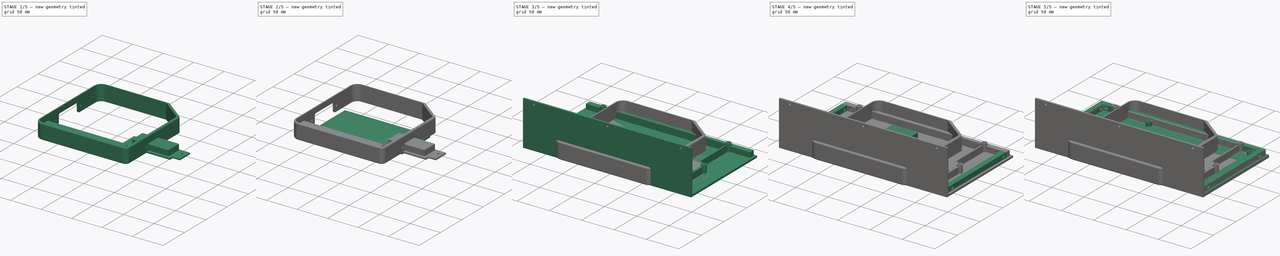
[diagram: build sequence overview — one tinted view per stage of 5, left to right]
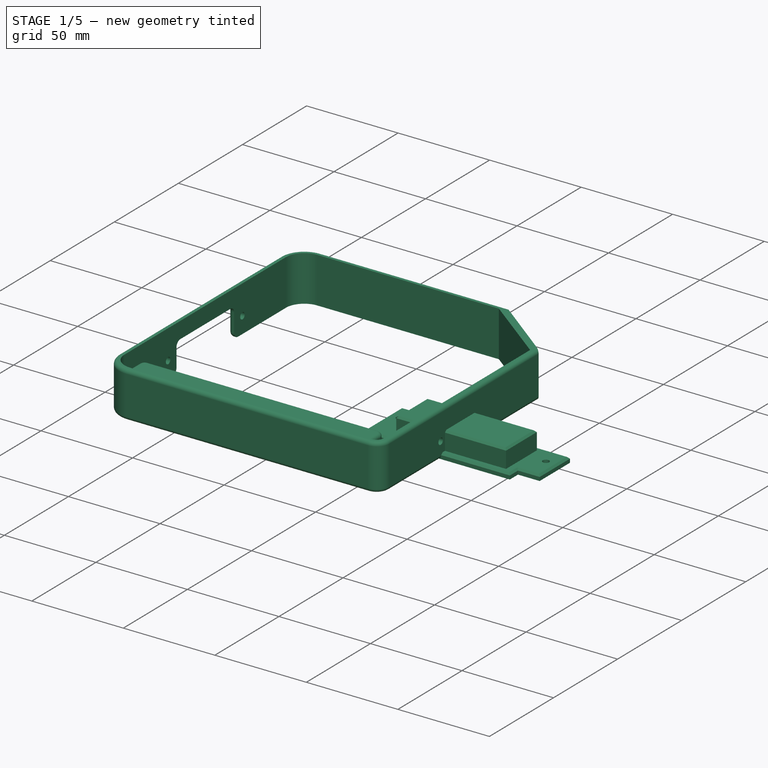
[diagram: stage 1 of 5 — iso view after this stage's code; geometry added in this stage tinted green]
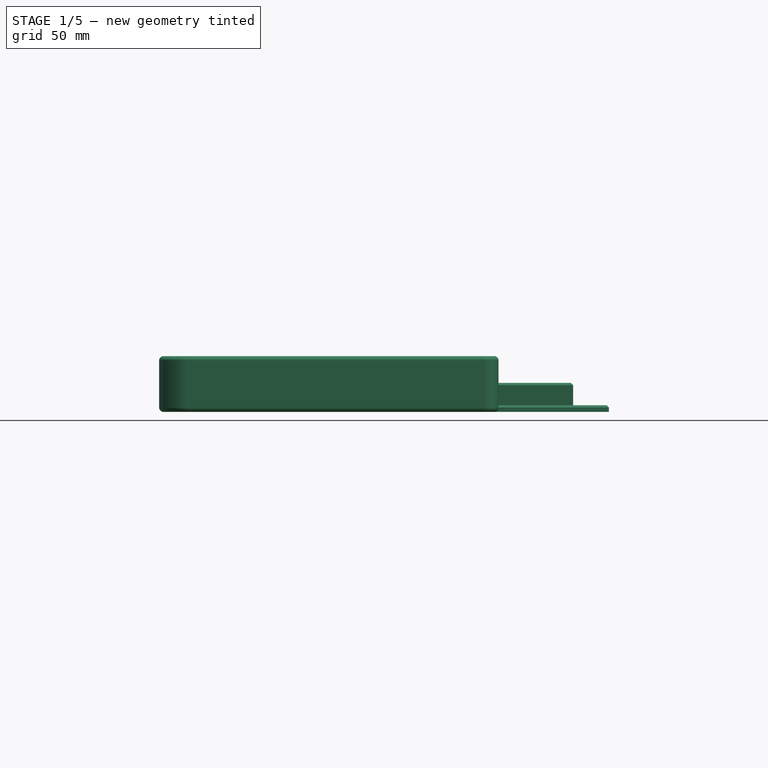
[diagram: stage 1 of 5 — front view after this stage's code; geometry added in this stage tinted green]
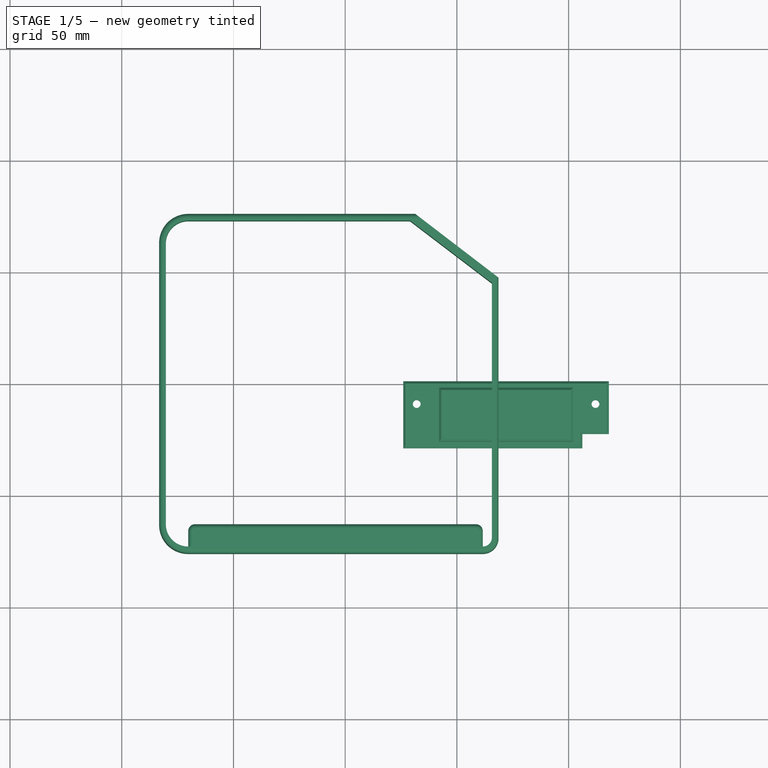
[diagram: stage 1 of 5 — top view after this stage's code; geometry added in this stage tinted green]
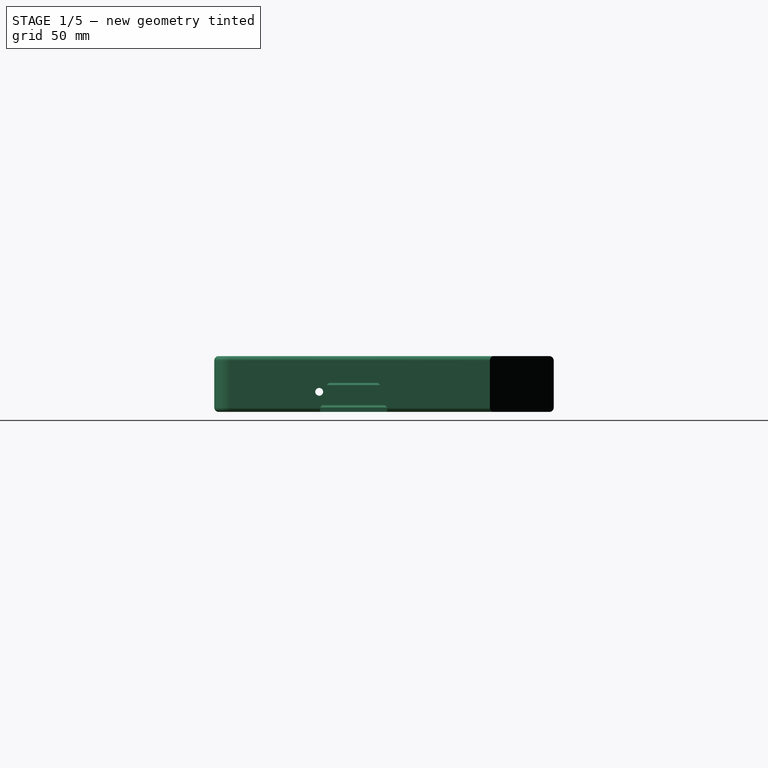
[diagram: stage 1 of 5 — right view after this stage's code; geometry added in this stage tinted green]
FCSTD DOCUMENT  (FreeCAD 0.21R33771 (Git))
Label: sBitX_Case_2
License: All rights reserved
LicenseURL: http://en.wikipedia.org/wiki/All_rights_reserved
objects: Sketcher::SketchObject×60, PartDesign::Pocket×44, PartDesign::Pad×20, PartDesign::Fillet×10, PartDesign::Body×8, App::Part×8, PartDesign::Chamfer×7, Part::Part2DObjectPython×4, Spreadsheet::Sheet×1, Part::Mirroring×1
note: 235 computed .brp shape members not serialized (recipe doc carries the construction recipe); baked Part::Feature solids carry a one-line shape summary decoded from their .brp

FEATURE [PartDesign::Body] Body005  label="OtherPlateBody"
  Group = -> [Sketch042,Pad014,Sketch043,Pocket029,Sketch044,Pocket030,Sketch045,Pocket031,Sketch046,Pocket032,Sketch047,Pocket033,Sketch048,Pocket034,Sketch049,Pad015,Sketch050,Pocket035,Chamfer003,Chamfer004,Chamfer005,ShapeString001,ShapeString002,Pocket036,Pocket037,Sketch051,Pocket038,ShapeString003,Pocket039]
  Origin = -> Origin011
  Tip = -> Pocket039
FEATURE [App::Part] Part005  label="OtherPlatePart"
  Group = -> [Body005]
  Origin = -> Origin010
FEATURE [Sketcher::SketchObject] Sketch052  label="TopCoverPadSketch"
  FullyConstrained = true
  MapMode = 5
  Support = -> [XY_Plane013]
  expr: Constraints[13] = 1.6 - 3
  expr: Constraints[15] = 32 - 6
  sketch-geometry (6):
    g0: LineSegment StartX=26 StartY=1.4 StartZ=0 EndX=118 EndY=1.4 EndZ=0
    g1: LineSegment StartX=118 StartY=1.4 StartZ=0 EndX=118 EndY=-22.24 EndZ=0
    g2: LineSegment StartX=118 StartY=-22.24 StartZ=0 EndX=106.15 EndY=-22.24 EndZ=0
    g3: LineSegment StartX=106.15 StartY=-22.24 StartZ=0 EndX=106.15 EndY=-28.6 EndZ=0
    g4: LineSegment StartX=106.15 StartY=-28.6 StartZ=0 EndX=26 EndY=-28.6 EndZ=0
    g5: LineSegment StartX=26 StartY=-28.6 StartZ=0 EndX=26 EndY=1.4 EndZ=0
  constraints (18):
    c: Horizontal(g0)
    c: Coincident(g0,g1)
    c: Vertical(g1)
    c: Coincident(g1,g2)
    c: Horizontal(g2)
    c: Coincident(g2,g3)
    c: Vertical(g3)
    c: Coincident(g3,g4)
    c: Horizontal(g4)
    c: Coincident(g4,g5)
    c: Coincident(g5,g0)
    c: Vertical(g5)
    c: DistanceY(g5,g5) = 30
    c: DistanceY(g0,g-1) = -1.4
    c: DistanceX(g0,g0) = 92
    c: DistanceX(g-1,g0) = 26
    c: DistanceY(g3,g3) = 6.36
    c: DistanceX(g2,g2) = 11.85
FEATURE [PartDesign::Pad] Pad016  label="TopCoverPad"
  Direction = (0,0,1)
  Length = 3
  Length2 = 10
  Profile = -> Sketch052
  ReferenceAxis = -> Sketch052 [N_Axis]
  Type = 0
  expr: Length = <<p>>.lid_wall_thickness
FEATURE [Sketcher::SketchObject] Sketch053  label="M3Sketch002"
  FullyConstrained = true
  MapMode = 5
  Placement = pos=(0,0,3) rot=(0,0,1;0rad)
  Support = -> [Pad016]
  expr: Constraints[1] = <<p>>.m3_diameter
  sketch-geometry (2):
    g0: Circle CenterX=32 CenterY=-8.8 CenterZ=0 NormalX=0 NormalY=0 NormalZ=1 AngleXU=0 Radius=1.75
    g1: Circle CenterX=112 CenterY=-8.8 CenterZ=0 NormalX=0 NormalY=0 NormalZ=1 AngleXU=0 Radius=1.75
  constraints (6):
    c: Equal(g0,g1)
    c: Diameter(g0) = 3.5
    c: DistanceX(g-1,g0) = 32
    c: DistanceX(g-1,g1) = 112
    c: DistanceY(g0,g-1) = 8.8
    c: DistanceY(g1,g-1) = 8.8
FEATURE [PartDesign::Pocket] Pocket040  label="M3Holes001"
  BaseFeature = -> Pad016
  Direction = (0,0,-1)
  Length = 3
  Length2 = 5
  Profile = -> Sketch053
  ReferenceAxis = -> Sketch053 [N_Axis]
  Type = 0
  expr: Length = <<p>>.lid_wall_thickness
FEATURE [Sketcher::SketchObject] Sketch054  label="2ndPad"
  FullyConstrained = true
  MapMode = 5
  Placement = pos=(0,0,3) rot=(0,0,1;0rad)
  Support = -> [Pocket040]
  sketch-geometry (4):
    g0: LineSegment StartX=42 StartY=-1.63 StartZ=0 EndX=102 EndY=-1.63 EndZ=0
    g1: LineSegment StartX=102 StartY=-1.63 StartZ=0 EndX=102 EndY=-25.63 EndZ=0
    g2: LineSegment StartX=102 StartY=-25.63 StartZ=0 EndX=42 EndY=-25.63 EndZ=0
    g3: LineSegment StartX=42 StartY=-25.63 StartZ=0 EndX=42 EndY=-1.63 EndZ=0
  constraints (12):
    c: Coincident(g0,g1)
    c: Coincident(g1,g2)
    c: Coincident(g2,g3)
    c: Coincident(g3,g0)
    c: Horizontal(g0)
    c: Horizontal(g2)
    c: Vertical(g1)
    c: Vertical(g3)
    c: DistanceX(g0,g0) = 60
    c: DistanceX(g-1,g0) = 102
    c: DistanceY(g3,g3) = 24
    c: DistanceY(g2,g-1) = 25.63
FEATURE [PartDesign::Pad] Pad017
  BaseFeature = -> Pocket040
  Direction = (0,0,1)
  Length = 10
  Length2 = 10
  Profile = -> Sketch054
  ReferenceAxis = -> Sketch054 [N_Axis]
  Type = 0
FEATURE [PartDesign::Chamfer] Chamfer006  label="EdgeChamfer"
  Angle = 45
  Base = -> Pad017 [Edge16,Edge18,Edge17,Edge10,Edge4,Edge7,Edge31,Edge36,Edge35,Edge33]
  BaseFeature = -> Pad017
  ChamferType = 0
  FlipDirection = false
  Size = 1
  Size2 = 1
  SupportTransform = false
  UseAllEdges = false
FEATURE [Sketcher::SketchObject] Sketch055
  FullyConstrained = true
  MapMode = 5
  Placement = pos=(0,0,0) rot=(1,0,0;3.14159rad)
  Support = -> [Chamfer006]
  expr: Constraints[9] = 56
  sketch-geometry (4):
    g0: LineSegment StartX=44 StartY=23.63 StartZ=0 EndX=100 EndY=23.63 EndZ=0
    g1: LineSegment StartX=100 StartY=23.63 StartZ=0 EndX=100 EndY=3.63 EndZ=0
    g2: LineSegment StartX=100 StartY=3.63 StartZ=0 EndX=44 EndY=3.63 EndZ=0
    g3: LineSegment StartX=44 StartY=3.63 StartZ=0 EndX=44 EndY=23.63 EndZ=0
  constraints (12):
    c: Coincident(g0,g1)
    c: Coincident(g1,g2)
    c: Coincident(g2,g3)
    c: Coincident(g3,g0)
    c: Horizontal(g0)
    c: Horizontal(g2)
    c: Vertical(g1)
    c: Vertical(g3)
    c: DistanceY(g1,g1) = 20
    c: DistanceX(g0,g0) = 56
    c: DistanceX(g-1,g1) = 100
    c: DistanceY(g-1,g0) = 23.63
FEATURE [PartDesign::Pocket] Pocket041  label="InnerPocket"
  BaseFeature = -> Chamfer006
  Direction = (0,0,1)
  Length = 8
  Length2 = 5
  Profile = -> Sketch055
  ReferenceAxis = -> Sketch055 [N_Axis]
  Type = 0
FEATURE [PartDesign::Body] Body006  label="TopCoverBody"
  Group = -> [Sketch052,Pad016,Sketch053,Pocket040,Sketch054,Pad017,Chamfer006,Sketch055,Pocket041]
  Origin = -> Origin013
  Tip = -> Pocket041
FEATURE [App::Part] Part006  label="TopCoverPart"
  Group = -> [Body006]
  Origin = -> Origin012
FEATURE [Sketcher::SketchObject] Sketch056  label="HandleBodySketch"
  FullyConstrained = true
  MapMode = 5
  Support = -> [XY_Plane015]
  expr: Constraints[10] = (<<p>>.lid_length + <<p>>.lid_wall_thickness * 2 + <<p>>.lid_wall_clearance) / 2
  expr: Constraints[18] = <<p>>.lid_length + <<p>>.lid_wall_thickness * 2 + <<p>>.lid_wall_clearance
  expr: Constraints[9] = <<p>>.lid_length + <<p>>.lid_wall_thickness * 2 + <<p>>.lid_wall_clearance
  sketch-geometry (17):
    g0: LineSegment StartX=-62.95 StartY=80.26 StartZ=0 EndX=62.95 EndY=80.26 EndZ=0
    g1: LineSegment StartX=72.95 StartY=70.26 StartZ=0 EndX=72.95 EndY=-35.43 EndZ=0
    g2: LineSegment StartX=-72.95 StartY=-29.04 StartZ=0 EndX=-72.95 EndY=70.26 EndZ=0
    g3: ArcOfCircle CenterX=62.95 CenterY=70.26 CenterZ=0 NormalX=0 NormalY=0 NormalZ=1 AngleXU=0 Radius=10 StartAngle=-9e-16 EndAngle=1.5708
    g4: ArcOfCircle CenterX=-62.95 CenterY=70.26 CenterZ=0 NormalX=0 NormalY=0 NormalZ=1 AngleXU=0 Radius=10 StartAngle=1.5708 EndAngle=3.14159
    g5: LineSegment StartX=-72.95 StartY=-29.04 StartZ=0 EndX=-45.07 EndY=-65.64 EndZ=0
    g6: LineSegment StartX=-45.07 StartY=-65.64 StartZ=0 EndX=68.95 EndY=-65.64 EndZ=0
    g7: LineSegment StartX=72.95 StartY=-35.43 StartZ=0 EndX=72.95 EndY=-61.64 EndZ=0
    g8: ArcOfCircle CenterX=68.95 CenterY=-61.64 CenterZ=0 NormalX=0 NormalY=0 NormalZ=1 AngleXU=0 Radius=4 StartAngle=4.71239 EndAngle=6.28319
    g9: LineSegment StartX=-75.95 StartY=-31.37 StartZ=0 EndX=-75.95 EndY=70.26 EndZ=0
    g10: LineSegment StartX=-62.95 StartY=83.26 StartZ=0 EndX=62.95 EndY=83.26 EndZ=0
    g11: LineSegment StartX=75.95 StartY=70.26 StartZ=0 EndX=75.95 EndY=-61.64 EndZ=0
    g12: LineSegment StartX=68.95 StartY=-68.64 StartZ=0 EndX=-47.4 EndY=-68.64 EndZ=0
    g13: LineSegment StartX=-47.4 StartY=-68.64 StartZ=0 EndX=-75.95 EndY=-31.37 EndZ=0
    g14: ArcOfCircle CenterX=-62.95 CenterY=70.26 CenterZ=0 NormalX=0 NormalY=0 NormalZ=1 AngleXU=0 Radius=13 StartAngle=1.5708 EndAngle=3.14159
    g15: ArcOfCircle CenterX=62.95 CenterY=70.26 CenterZ=0 NormalX=0 NormalY=0 NormalZ=1 AngleXU=0 Radius=13 StartAngle=3e-16 EndAngle=1.5708
    g16: ArcOfCircle CenterX=68.95 CenterY=-61.64 CenterZ=0 NormalX=0 NormalY=0 NormalZ=1 AngleXU=0 Radius=7 StartAngle=4.71239 EndAngle=6.28319
  constraints (42):
    c: Horizontal(g0)
    c: Vertical(g1)
    c: Vertical(g2)
    c: Tangent(g0,g3) = 1.5708
    c: Tangent(g1,g3) = 1.5708
    c: Tangent(g0,g4) = 1.5708
    c: Tangent(g2,g4) = 1.5708
    c: Radius(g3) = 10
    c: Radius(g4) = 10
    c: DistanceX(g2,g1) = 145.9
    c: DistanceX(g2,g-1) = 72.95
    c: Coincident(g6,g5)
    c: Horizontal(g6)
    c: Coincident(g7,g1)
    c: Vertical(g7)
    c: Tangent(g7,g8) = 1.5708
    c: Tangent(g6,g8) = -1.5708
    c: Radius(g8) = 4
    c: DistanceY(g6,g0) = 145.9
    c: DistanceX(g6,g6) = 114.02
    c: DistanceY(g2,g2) = 99.3
    c: Coincident(g5,g2)
    c: DistanceY(g5,g-1) = 65.64
    c: DistanceY(g1,g1) = 105.69
    c: Vertical(g9)
    c: Horizontal(g10)
    c: Vertical(g11)
    c: Horizontal(g12)
    c: Coincident(g12,g13)
    c: Coincident(g13,g9)
    c: Tangent(g9,g14) = 1.5708
    c: Tangent(g10,g14) = 1.5708
    c: Tangent(g10,g15) = 1.5708
    c: Tangent(g11,g15) = 1.5708
    c: Tangent(g12,g16) = 1.5708
    c: Tangent(g11,g16) = 1.5708
    c: Coincident(g4,g14)
    c: Coincident(g3,g15)
    c: Radius(g16) = 7
    c: Coincident(g8,g16)
    c: DistanceX(g12,g12) = 116.35
    c: DistanceY(g9,g9) = 101.63
FEATURE [PartDesign::Pad] Pad018  label="handlebodypad"
  Direction = (0,0,1)
  Length = 25
  Length2 = 10
  Profile = -> Sketch056
  ReferenceAxis = -> Sketch056 [N_Axis]
  Type = 0
FEATURE [Sketcher::SketchObject] Sketch057
  FullyConstrained = true
  MapMode = 5
  Placement = pos=(0,83.26,0) rot=(0,0.707107,0.707107;3.14159rad)
  Support = -> [Pad018]
  expr: Constraints[1] = <<p>>.m3_diameter
  expr: Constraints[2] = (<<p>>.body_lug_height + <<p>>.radio_thickness + <<p>>.lid_thickness + <<p>>.lid_support_thickness + 5) / 2 - <<p>>.lid_support_thickness / 2
  expr: Constraints[3] = (<<p>>.body_lug_height + <<p>>.radio_thickness + <<p>>.lid_thickness + <<p>>.lid_support_thickness + 5) / 2 - <<p>>.lid_support_thickness / 2
  expr: Constraints[4] = 9
  expr: Constraints[5] = 25 - <<p>>.lid_wall_thickness - <<p>>.lid_support_thickness - <<p>>.lid_hole_diameter - 0.5
  sketch-geometry (6):
    g0: Circle CenterX=-29 CenterY=9 CenterZ=0 NormalX=0 NormalY=0 NormalZ=1 AngleXU=0 Radius=1.75
    g1: Circle CenterX=29 CenterY=9 CenterZ=0 NormalX=0 NormalY=0 NormalZ=1 AngleXU=0 Radius=1.75
    g2: LineSegment StartX=-22.5 StartY=0 StartZ=0 EndX=22.5 EndY=0 EndZ=0
    g3: LineSegment StartX=22.5 StartY=0 StartZ=0 EndX=22.5 EndY=16 EndZ=0
    g4: LineSegment StartX=22.5 StartY=16 StartZ=0 EndX=-22.5 EndY=16 EndZ=0
    g5: LineSegment StartX=-22.5 StartY=16 StartZ=0 EndX=-22.5 EndY=0 EndZ=0
  constraints (18):
    c: Equal(g0,g1)
    c: Diameter(g0) = 3.5
    c: DistanceX(g0,g-1) = 29
    c: DistanceX(g-1,g1) = 29
    c: DistanceY(g-1,g0) = 9
    c: DistanceY(g-1,g1) = 9
    c: Coincident(g2,g3)
    c: Coincident(g3,g4)
    c: Coincident(g4,g5)
    c: Coincident(g5,g2)
    c: Horizontal(g2)
    c: Horizontal(g4)
    c: Vertical(g3)
    c: Vertical(g5)
    c: PointOnObject(g2,g-1)
    c: DistanceX(g3,g1) = 6.5
    c: DistanceX(g0,g4) = 6.5
    c: DistanceY(g5,g5) = 16
FEATURE [PartDesign::Pocket] Pocket042  label="sidepocket"
  BaseFeature = -> Pad018
  Direction = (0,-1,2e-16)
  Length = 5
  Length2 = 5
  Profile = -> Sketch057
  ReferenceAxis = -> Sketch057 [N_Axis]
  Type = 0
FEATURE [PartDesign::Fillet] Fillet004
  Base = -> Pocket042 [Edge14,Edge25]
  BaseFeature = -> Pocket042
  Radius = 3
  SupportTransform = false
  UseAllEdges = false
FEATURE [PartDesign::Fillet] Fillet005
  Base = -> Fillet004 [Edge72,Edge73]
  BaseFeature = -> Fillet004
  Radius = 3
  SupportTransform = false
  UseAllEdges = false
FEATURE [PartDesign::Fillet] Fillet006
  Base = -> Fillet005 [Edge52,Edge34]
  BaseFeature = -> Fillet005
  Radius = 2
  SupportTransform = false
  UseAllEdges = false
FEATURE [Sketcher::SketchObject] Sketch058
  FullyConstrained = true
  MapMode = 5
  Placement = pos=(72.95,0,0) rot=(0.57735,-0.57735,-0.57735;2.0944rad)
  Support = -> [Fillet006]
  sketch-geometry (4):
    g0: LineSegment StartX=-70.25 StartY=25 StartZ=0 EndX=61.55 EndY=25 EndZ=0
    g1: LineSegment StartX=61.55 StartY=25 StartZ=0 EndX=61.55 EndY=0 EndZ=0
    g2: LineSegment StartX=61.55 StartY=0 StartZ=0 EndX=-70.25 EndY=0 EndZ=0
    g3: LineSegment StartX=-70.25 StartY=0 StartZ=0 EndX=-70.25 EndY=25 EndZ=0
  constraints (12):
    c: Coincident(g0,g1)
    c: Coincident(g1,g2)
    c: Coincident(g2,g3)
    c: Coincident(g3,g0)
    c: Horizontal(g0)
    c: Horizontal(g2)
    c: Vertical(g1)
    c: Vertical(g3)
    c: PointOnObject(g1,g-1)
    c: DistanceY(g3,g3) = 25
    c: DistanceX(g0,g0) = 131.8
    c: DistanceX(g2,g-1) = 70.25
FEATURE [PartDesign::Pad] Pad019  label="HandlePad"
  BaseFeature = -> Fillet006
  Direction = (-1,0,0)
  Length = 10
  Length2 = 10
  Profile = -> Sketch058
  ReferenceAxis = -> Sketch058 [N_Axis]
  Type = 0
FEATURE [PartDesign::Fillet] Fillet007
  Base = -> Pad019 [Edge127]
  BaseFeature = -> Pad019
  Radius = 9.8
  SupportTransform = false
  UseAllEdges = false
FEATURE [PartDesign::Fillet] Fillet008
  Base = -> Fillet007 [Edge11,Edge34,Edge6,Edge8]
  BaseFeature = -> Fillet007
  Radius = 3
  SupportTransform = false
  UseAllEdges = false
FEATURE [PartDesign::Fillet] Fillet009
  Base = -> Fillet008 [Edge49,Edge114,Edge54,Edge113,Edge51]
  BaseFeature = -> Fillet008
  Radius = 2
  SupportTransform = false
  UseAllEdges = false
FEATURE [Sketcher::SketchObject] Sketch059
  FullyConstrained = true
  MapMode = 5
  Placement = pos=(0,-68.64,0) rot=(1,0,0;1.5708rad)
  Support = -> [Fillet009]
  expr: Constraints[0] = <<p>>.m3_diameter
  expr: Constraints[1] = (<<p>>.body_lug_height + <<p>>.radio_thickness + <<p>>.lid_thickness + <<p>>.lid_support_thickness + 5) / 2 - <<p>>.lid_support_thickness / 2
  expr: Constraints[2] = 9
  sketch-geometry (1):
    g0: Circle CenterX=29 CenterY=9 CenterZ=0 NormalX=0 NormalY=0 NormalZ=1 AngleXU=0 Radius=1.75
  constraints (3):
    c: Diameter(g0) = 3.5
    c: DistanceX(g-1,g0) = 29
    c: DistanceY(g-1,g0) = 9
FEATURE [PartDesign::Pocket] Pocket043
  BaseFeature = -> Fillet009
  Direction = (0,1,-2e-16)
  Length = 5
  Length2 = 5
  Profile = -> Sketch059
  ReferenceAxis = -> Sketch059 [N_Axis]
  Type = 0
FEATURE [PartDesign::Body] Body007  label="HandleBody"
  Group = -> [Sketch056,Pad018,Sketch057,Pocket042,Fillet004,Fillet005,Fillet006,Sketch058,Pad019,Fillet007,Fillet008,Fillet009,Sketch059,Pocket043]
  Origin = -> Origin015
  Placement = pos=(0,0,0) rot=(0,0,1;1.5708rad)
  Tip = -> Pocket043
  expr: .Placement.Base.z = 0
FEATURE [App::Part] Part007  label="HandlePart"
  Group = -> [Body007]
  Origin = -> Origin014
FEATURE [Part::Mirroring] Part__Mirroring  label="HandleBody (Mirror #1)"
  Base = (0,0,0)
  Normal = (0,1,0)
  Source = -> Body007
note: 4 file-system paths scrubbed to <path> (originals preserved in the JSON sidecar)
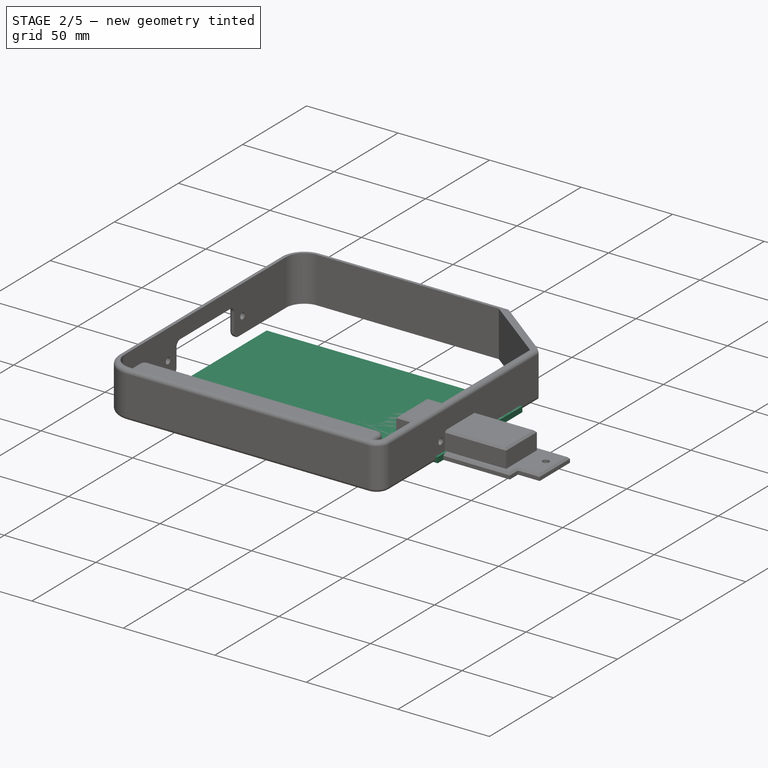
[diagram: stage 2 of 5 — iso view after this stage's code; geometry added in this stage tinted green]
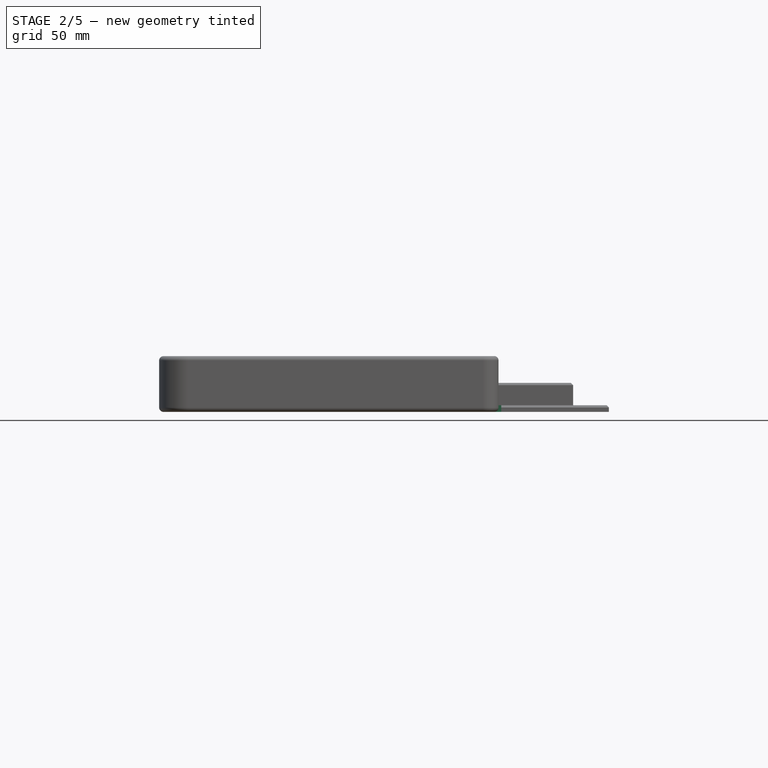
[diagram: stage 2 of 5 — front view after this stage's code; geometry added in this stage tinted green]
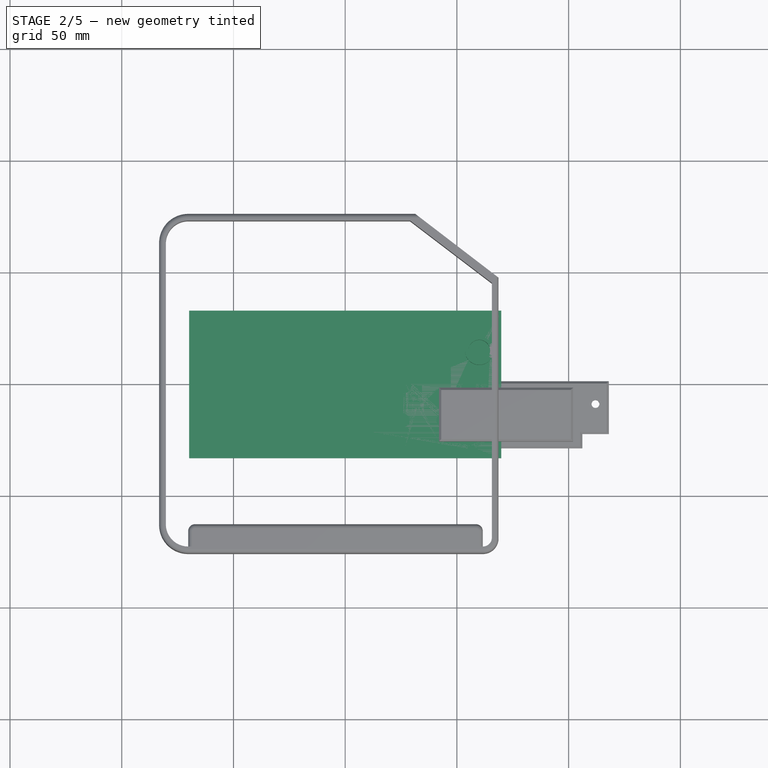
[diagram: stage 2 of 5 — top view after this stage's code; geometry added in this stage tinted green]
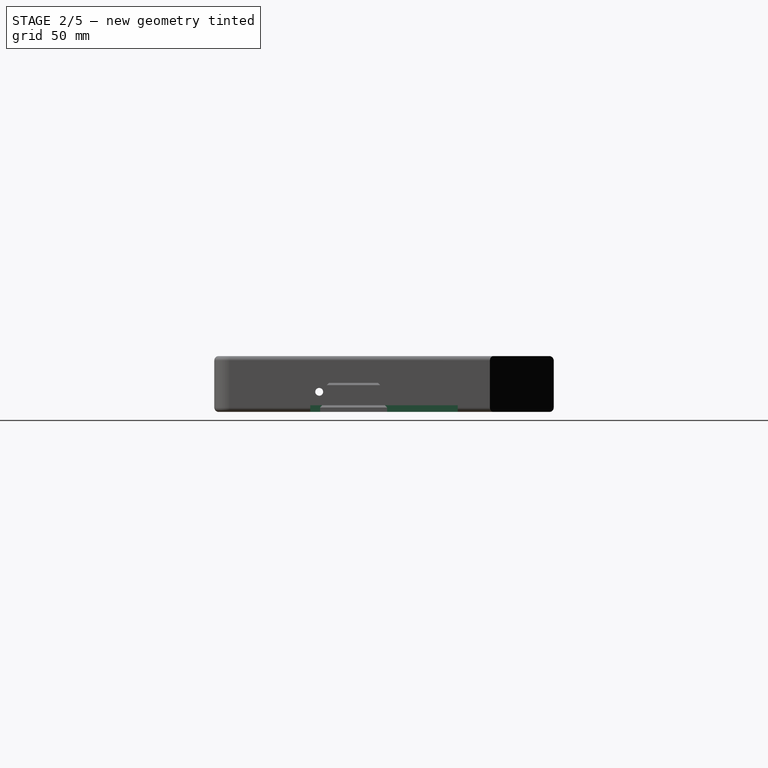
[diagram: stage 2 of 5 — right view after this stage's code; geometry added in this stage tinted green]
FEATURE [PartDesign::Body] Body003  label="TopPlateBody"
  Group = -> [Sketch034,Pad012,Sketch035,Pocket023,Sketch036,Pocket024,Chamfer001]
  Origin = -> Origin007
  Tip = -> Chamfer001
FEATURE [App::Part] Part003  label="TopPlatePart"
  Group = -> [Body003]
  Origin = -> Origin006
FEATURE [Sketcher::SketchObject] Sketch037  label="RPIPlatePadSketch"
  FullyConstrained = true
  MapMode = 5
  Support = -> [XY_Plane009]
  expr: Constraints[10] = <<p>>.body_lug_height + <<p>>.radio_thickness + <<p>>.lid_thickness + <<p>>.lid_support_thickness + 5
  expr: Constraints[8] = <<p>>.lid_length
  sketch-geometry (4):
    g0: LineSegment StartX=-69.85 StartY=33 StartZ=0 EndX=69.85 EndY=33 EndZ=0
    g1: LineSegment StartX=69.85 StartY=33 StartZ=0 EndX=69.85 EndY=-33 EndZ=0
    g2: LineSegment StartX=69.85 StartY=-33 StartZ=0 EndX=-69.85 EndY=-33 EndZ=0
    g3: LineSegment StartX=-69.85 StartY=-33 StartZ=0 EndX=-69.85 EndY=33 EndZ=0
  constraints (11):
    c: Coincident(g0,g1)
    c: Coincident(g1,g2)
    c: Coincident(g2,g3)
    c: Coincident(g3,g0)
    c: Horizontal(g0)
    c: Horizontal(g2)
    c: Vertical(g1)
    c: Vertical(g3)
    c: DistanceX(g0,g0) = 139.7
    c: Symmetric(g0,g2,g-1)
    c: DistanceY(g3,g3) = 66
FEATURE [PartDesign::Pad] Pad013  label="RPIPlatePad"
  Direction = (0,0,1)
  Length = 3
  Length2 = 10
  Profile = -> Sketch037
  ReferenceAxis = -> Sketch037 [N_Axis]
  Type = 0
  expr: Length = <<p>>.lid_wall_thickness
FEATURE [PartDesign::Body] Body004  label="RPIPlateBody"
  Group = -> [Sketch037,Pad013,Sketch038,Pocket025,Sketch039,Pocket026,Chamfer002,Sketch040,Pocket027,Sketch041,Pocket028]
  Origin = -> Origin009
  Tip = -> Pocket028
FEATURE [App::Part] Part004  label="RPIPlatePart"
  Group = -> [Body004]
  Origin = -> Origin008
FEATURE [Sketcher::SketchObject] Sketch042  label="OtherPlateSketch"
  FullyConstrained = true
  MapMode = 5
  Support = -> [XY_Plane011]
  expr: Constraints[10] = <<p>>.body_lug_height + <<p>>.radio_thickness + <<p>>.lid_thickness + <<p>>.lid_support_thickness + 5
  expr: Constraints[9] = <<p>>.lid_length
  sketch-geometry (4):
    g0: LineSegment StartX=-69.85 StartY=33 StartZ=0 EndX=69.85 EndY=33 EndZ=0
    g1: LineSegment StartX=69.85 StartY=33 StartZ=0 EndX=69.85 EndY=-33 EndZ=0
    g2: LineSegment StartX=69.85 StartY=-33 StartZ=0 EndX=-69.85 EndY=-33 EndZ=0
    g3: LineSegment StartX=-69.85 StartY=-33 StartZ=0 EndX=-69.85 EndY=33 EndZ=0
  constraints (11):
    c: Coincident(g0,g1)
    c: Coincident(g1,g2)
    c: Coincident(g2,g3)
    c: Coincident(g3,g0)
    c: Horizontal(g0)
    c: Horizontal(g2)
    c: Vertical(g1)
    c: Vertical(g3)
    c: Symmetric(g0,g2,g-1)
    c: DistanceX(g0,g0) = 139.7
    c: DistanceY(g3,g3) = 66
FEATURE [PartDesign::Pad] Pad014  label="OtherPlateBodyPad"
  Direction = (0,0,1)
  Length = 3
  Length2 = 10
  Profile = -> Sketch042
  ReferenceAxis = -> Sketch042 [N_Axis]
  Type = 0
  expr: Length = <<p>>.lid_wall_thickness
FEATURE [Sketcher::SketchObject] Sketch043  label="PCBSketch001"
  FullyConstrained = true
  MapMode = 5
  Placement = pos=(0,0,3) rot=(0,0,1;0rad)
  Support = -> [Pad014]
  expr: Constraints[10] = (<<p>>.body_lug_height + <<p>>.radio_thickness + <<p>>.lid_thickness + <<p>>.lid_support_thickness + 5) / 2 - 13.65
  expr: Constraints[8] = <<p>>.lid_length
  expr: Constraints[9] = <<p>>.lid_length / 2
  sketch-geometry (4):
    g0: LineSegment StartX=-69.85 StartY=-19.35 StartZ=0 EndX=69.85 EndY=-19.35 EndZ=0
    g1: LineSegment StartX=69.85 StartY=-19.35 StartZ=0 EndX=69.85 EndY=-21.1 EndZ=0
    g2: LineSegment StartX=69.85 StartY=-21.1 StartZ=0 EndX=-69.85 EndY=-21.1 EndZ=0
    g3: LineSegment StartX=-69.85 StartY=-21.1 StartZ=0 EndX=-69.85 EndY=-19.35 EndZ=0
  constraints (12):
    c: Coincident(g0,g1)
    c: Coincident(g1,g2)
    c: Coincident(g2,g3)
    c: Coincident(g3,g0)
    c: Horizontal(g0)
    c: Horizontal(g2)
    c: Vertical(g1)
    c: Vertical(g3)
    c: DistanceX(g0,g0) = 139.7
    c: DistanceX(g-1,g0) = 69.85
    c: DistanceY(g0,g-1) = 19.35
    c: DistanceY(g1,g1) = 1.75
FEATURE [PartDesign::Pocket] Pocket029  label="PCBPocket001"
  BaseFeature = -> Pad014
  Direction = (0,0,-1)
  Length = 2
  Length2 = 5
  Profile = -> Sketch043
  ReferenceAxis = -> Sketch043 [N_Axis]
  Type = 0
FEATURE [Sketcher::SketchObject] Sketch044  label="M3Sketch001"
  FullyConstrained = true
  MapMode = 5
  Placement = pos=(0,0,3) rot=(0,0,1;0rad)
  Support = -> [Pocket029]
  expr: Constraints[10] = <<p>>.lid_length / 2 - <<p>>.lid_wall_thickness - <<p>>.lid_support_thickness - <<p>>.lid_hole_diameter / 2
  expr: Constraints[11] = <<p>>.lid_length / 2 - <<p>>.lid_wall_thickness - <<p>>.lid_support_thickness - <<p>>.lid_hole_diameter / 2
  expr: Constraints[3] = <<p>>.m3_diameter
  expr: Constraints[4] = (<<p>>.body_lug_height + <<p>>.radio_thickness + <<p>>.lid_thickness + <<p>>.lid_support_thickness + 5) / 2 - <<p>>.lid_support_thickness / 2
  expr: Constraints[5] = (<<p>>.body_lug_height + <<p>>.radio_thickness + <<p>>.lid_thickness + <<p>>.lid_support_thickness + 5) / 2 - <<p>>.lid_support_thickness / 2
  expr: Constraints[6] = (<<p>>.body_lug_height + <<p>>.radio_thickness + <<p>>.lid_thickness + <<p>>.lid_support_thickness + 5) / 2 - <<p>>.lid_support_thickness / 2
  expr: Constraints[7] = (<<p>>.body_lug_height + <<p>>.radio_thickness + <<p>>.lid_thickness + <<p>>.lid_support_thickness + 5) / 2 - <<p>>.lid_support_thickness / 2
  expr: Constraints[8] = <<p>>.lid_length / 2 - <<p>>.lid_wall_thickness - <<p>>.lid_support_thickness - <<p>>.lid_hole_diameter / 2
  expr: Constraints[9] = <<p>>.lid_length / 2 - <<p>>.lid_wall_thickness - <<p>>.lid_support_thickness - <<p>>.lid_hole_diameter / 2
  sketch-geometry (4):
    g0: Circle CenterX=-56.6 CenterY=29 CenterZ=0 NormalX=0 NormalY=0 NormalZ=1 AngleXU=0 Radius=1.75
    g1: Circle CenterX=56.6 CenterY=29 CenterZ=0 NormalX=0 NormalY=0 NormalZ=1 AngleXU=0 Radius=1.75
    g2: Circle CenterX=56.6 CenterY=-29 CenterZ=0 NormalX=0 NormalY=0 NormalZ=1 AngleXU=0 Radius=1.75
    g3: Circle CenterX=-56.6 CenterY=-29 CenterZ=0 NormalX=0 NormalY=0 NormalZ=1 AngleXU=0 Radius=1.75
  constraints (12):
    c: Equal(g0,g1)
    c: Equal(g0,g2)
    c: Equal(g0,g3)
    c: Diameter(g0) = 3.5
    c: DistanceY(g-1,g0) = 29
    c: DistanceY(g-1,g1) = 29
    c: DistanceY(g2,g-1) = 29
    c: DistanceY(g3,g-1) = 29
    c: DistanceX(g-1,g1) = 56.6
    c: DistanceX(g-1,g2) = 56.6
    c: DistanceX(g3,g-1) = 56.6
    c: DistanceX(g0,g-1) = 56.6
FEATURE [PartDesign::Pocket] Pocket030  label="M3Pocket"
  BaseFeature = -> Pocket029
  Direction = (0,0,-1)
  Length = 3
  Length2 = 5
  Profile = -> Sketch044
  ReferenceAxis = -> Sketch044 [N_Axis]
  Type = 0
  expr: Length = <<p>>.lid_wall_thickness
FEATURE [Sketcher::SketchObject] Sketch045  label="PowerSketch"
  FullyConstrained = true
  MapMode = 5
  Placement = pos=(0,0,3) rot=(0,0,1;0rad)
  Support = -> [Pocket030]
  expr: Constraints[10] = <<p>>.power_length
  expr: Constraints[11] = (<<p>>.body_lug_height + <<p>>.radio_thickness + <<p>>.lid_thickness + <<p>>.lid_support_thickness + 5) / 2 - <<p>>.body_lug_height
  expr: Constraints[8] = <<p>>.power_width
  expr: Constraints[9] = <<p>>.lid_length / 2 - <<p>>.power_edge
  sketch-geometry (4):
    g0: LineSegment StartX=-5.4 StartY=-21 StartZ=0 EndX=10.6 EndY=-21 EndZ=0
    g1: LineSegment StartX=10.6 StartY=-21 StartZ=0 EndX=10.6 EndY=-29 EndZ=0
    g2: LineSegment StartX=10.6 StartY=-29 StartZ=0 EndX=-5.4 EndY=-29 EndZ=0
    g3: LineSegment StartX=-5.4 StartY=-29 StartZ=0 EndX=-5.4 EndY=-21 EndZ=0
  constraints (12):
    c: Coincident(g0,g1)
    c: Coincident(g1,g2)
    c: Coincident(g2,g3)
    c: Coincident(g3,g0)
    c: Horizontal(g0)
    c: Horizontal(g2)
    c: Vertical(g1)
    c: Vertical(g3)
    c: DistanceX(g0,g0) = 16
    c: DistanceX(g-1,g0) = 10.6
    c: DistanceY(g3,g3) = 8
    c: DistanceY(g0,g-1) = 21
FEATURE [PartDesign::Pocket] Pocket031  label="PowerPocket"
  BaseFeature = -> Pocket030
  Direction = (0,0,-1)
  Length = 3
  Length2 = 5
  Profile = -> Sketch045
  ReferenceAxis = -> Sketch045 [N_Axis]
  Type = 0
  expr: Length = <<p>>.lid_wall_thickness
FEATURE [Sketcher::SketchObject] Sketch046  label="PowerSwitchSketch"
  FullyConstrained = true
  MapMode = 5
  Placement = pos=(0,0,3) rot=(0,0,1;0rad)
  Support = -> [Pocket031]
  expr: Constraints[1] = <<p>>.power_switch_diameter
  expr: Constraints[2] = -50 mm
  sketch-geometry (1):
    g0: Circle CenterX=-50 CenterY=0 CenterZ=0 NormalX=0 NormalY=0 NormalZ=1 AngleXU=0 Radius=10.25
  constraints (3):
    c: PointOnObject(g0,g-1)
    c: Diameter(g0) = 20.5
    c: DistanceX(g-1,g0) = -50
FEATURE [PartDesign::Pocket] Pocket032  label="PowerSwitchPocket"
  BaseFeature = -> Pocket031
  Direction = (0,0,-1)
  Length = 3
  Length2 = 5
  Profile = -> Sketch046
  ReferenceAxis = -> Sketch046 [N_Axis]
  Type = 0
  expr: Length = <<p>>.lid_wall_thickness
FEATURE [Sketcher::SketchObject] Sketch047  label="JackSketch"
  FullyConstrained = true
  MapMode = 5
  Placement = pos=(0,0,3) rot=(0,0,1;0rad)
  Support = -> [Pocket032]
  expr: Constraints[2] = <<p>>.jack_diameter
  expr: Constraints[3] = <<p>>.lid_length / 2 - <<p>>.jack_edge - <<p>>.jack_diameter / 2
  expr: Constraints[6] = (<<p>>.body_lug_height + <<p>>.radio_thickness + <<p>>.lid_thickness + <<p>>.lid_support_thickness + 5) / 2 - <<p>>.body_lug_height - 1.65 - <<p>>.jack_diameter / 2 - 0.1
  expr: Constraints[7] = (<<p>>.body_lug_height + <<p>>.radio_thickness + <<p>>.lid_thickness + <<p>>.lid_support_thickness + 5) / 2 - <<p>>.body_lug_height - 1.65 - <<p>>.jack_diameter / 2 - 0.1
  expr: Constraints[8] = (<<p>>.body_lug_height + <<p>>.radio_thickness + <<p>>.lid_thickness + <<p>>.lid_support_thickness + 5) / 2 - <<p>>.body_lug_height - 1.65 - <<p>>.jack_diameter / 2 - 0.1
  sketch-geometry (3):
    g0: Circle CenterX=60.9 CenterY=-16.1 CenterZ=0 NormalX=0 NormalY=0 NormalZ=1 AngleXU=0 Radius=3.15
    g1: Circle CenterX=44.02 CenterY=-16.1 CenterZ=0 NormalX=0 NormalY=0 NormalZ=1 AngleXU=0 Radius=3.15
    g2: Circle CenterX=25.62 CenterY=-16.1 CenterZ=0 NormalX=0 NormalY=0 NormalZ=1 AngleXU=0 Radius=3.15
  constraints (9):
    c: Equal(g0,g1)
    c: Equal(g0,g2)
    c: Diameter(g0) = 6.3
    c: DistanceX(g-1,g0) = 60.9
    c: DistanceX(g1,g0) = 16.88
    c: DistanceX(g2,g1) = 18.4
    c: DistanceY(g2,g-1) = 16.1
    c: DistanceY(g1,g-1) = 16.1
    c: DistanceY(g0,g-1) = 16.1
FEATURE [PartDesign::Pocket] Pocket033  label="JackPocket"
  BaseFeature = -> Pocket032
  Direction = (0,0,-1)
  Length = 3
  Length2 = 5
  Profile = -> Sketch047
  ReferenceAxis = -> Sketch047 [N_Axis]
  Type = 0
  expr: Length = <<p>>.lid_wall_thickness
FEATURE [Sketcher::SketchObject] Sketch048  label="5vSketch"
  FullyConstrained = true
  MapMode = 5
  Placement = pos=(0,0,3) rot=(0,0,1;0rad)
  Support = -> [Pocket033]
  expr: Constraints[1] = <<p>>.v5_diameter
  sketch-geometry (1):
    g0: Circle CenterX=25.77 CenterY=0 CenterZ=0 NormalX=0 NormalY=0 NormalZ=1 AngleXU=0 Radius=4
  constraints (3):
    c: PointOnObject(g0,g-1)
    c: Diameter(g0) = 8
    c: DistanceX(g-1,g0) = 25.77
FEATURE [PartDesign::Pocket] Pocket034  label="5vPocket"
  BaseFeature = -> Pocket033
  Direction = (0,0,-1)
  Length = 3
  Length2 = 5
  Profile = -> Sketch048
  ReferenceAxis = -> Sketch048 [N_Axis]
  Type = 0
  expr: Length = <<p>>.lid_wall_thickness
FEATURE [Sketcher::SketchObject] Sketch049  label="MicPadSketch"
  FullyConstrained = true
  MapMode = 5
  Placement = pos=(0,0,3) rot=(0,0,1;0rad)
  Support = -> [Pocket034]
  expr: Constraints[1] = <<p>>.mic_diamter + <<p>>.lid_wall_thickness
  expr: Constraints[2] = <<p>>.mic_diamter
  sketch-geometry (2):
    g0: Circle CenterX=60 CenterY=15 CenterZ=0 NormalX=0 NormalY=0 NormalZ=1 AngleXU=0 Radius=6.35
    g1: Circle CenterX=60 CenterY=15 CenterZ=0 NormalX=0 NormalY=0 NormalZ=1 AngleXU=0 Radius=4.85
  constraints (5):
    c: Coincident(g1,g0)
    c: Diameter(g0) = 12.7
    c: Diameter(g1) = 9.7
    c: DistanceY(g-1,g0) = 15
    c: DistanceX(g-1,g0) = 60
FEATURE [PartDesign::Pad] Pad015  label="MicPad"
  BaseFeature = -> Pocket034
  Direction = (0,0,1)
  Length = 6.7
  Length2 = 10
  Profile = -> Sketch049
  ReferenceAxis = -> Sketch049 [N_Axis]
  Type = 0
  expr: Length = <<p>>.mic_length
FEATURE [Sketcher::SketchObject] Sketch050  label="MicHoleSketch"
  FullyConstrained = true
  MapMode = 5
  Placement = pos=(0,0,3) rot=(0,0,1;0rad)
  Support = -> [Pad015]
  expr: Constraints[10] = 15 - <<p>>.mic_diamter / 3
  expr: Constraints[13] = 60 - <<p>>.mic_diamter / 3
  expr: Constraints[14] = 60 + <<p>>.mic_diamter / 3
  expr: Constraints[8] = 15 + <<p>>.mic_diamter / 3
  sketch-geometry (5):
    g0: Circle CenterX=60 CenterY=15 CenterZ=0 NormalX=0 NormalY=0 NormalZ=1 AngleXU=0 Radius=1
    g1: Circle CenterX=60 CenterY=18.2333 CenterZ=0 NormalX=0 NormalY=0 NormalZ=1 AngleXU=0 Radius=1
    g2: Circle CenterX=63.2333 CenterY=15 CenterZ=0 NormalX=0 NormalY=0 NormalZ=1 AngleXU=0 Radius=1
    g3: Circle CenterX=60 CenterY=11.7667 CenterZ=0 NormalX=0 NormalY=0 NormalZ=1 AngleXU=0 Radius=1
    g4: Circle CenterX=56.7667 CenterY=15 CenterZ=0 NormalX=0 NormalY=0 NormalZ=1 AngleXU=0 Radius=1
  constraints (15):
    c: Diameter(g0) = 2
    c: DistanceX(g-1,g0) = 60
    c: DistanceY(g-1,g0) = 15
    c: Equal(g4,g1)
    c: Equal(g4,g2)
    c: Equal(g4,g3)
    c: Diameter(g4) = 2
    c: DistanceX(g-1,g1) = 60
    c: DistanceY(g-1,g1) = 18.2333
    c: DistanceX(g-1,g3) = 60
    c: DistanceY(g-1,g3) = 11.7667
    c: DistanceY(g-1,g4) = 15
    c: DistanceY(g-1,g2) = 15
    c: DistanceX(g-1,g4) = 56.7667
    c: DistanceX(g-1,g2) = 63.2333
FEATURE [PartDesign::Pocket] Pocket035  label="MicHolePocket"
  BaseFeature = -> Pad015
  Direction = (0,0,-1)
  Length = 3
  Length2 = 5
  Profile = -> Sketch050
  ReferenceAxis = -> Sketch050 [N_Axis]
  Type = 0
  expr: Length = <<p>>.lid_wall_thickness
FEATURE [PartDesign::Chamfer] Chamfer003  label="PowerSwitchChamfer"
  Angle = 45
  Base = -> Pocket035 [Edge39]
  BaseFeature = -> Pocket035
  ChamferType = 0
  FlipDirection = false
  Size = 1
  Size2 = 1
  SupportTransform = false
  UseAllEdges = false
FEATURE [PartDesign::Chamfer] Chamfer004  label="MicHoleChamfer"
  Angle = 45
  Base = -> Chamfer003 [Edge58,Edge55,Edge56,Edge57,Edge54]
  BaseFeature = -> Chamfer003
  ChamferType = 0
  FlipDirection = false
  Size = 0.5
  Size2 = 1
  SupportTransform = false
  UseAllEdges = false
FEATURE [PartDesign::Chamfer] Chamfer005  label="PowerChamfer"
  Angle = 45
  Base = -> Chamfer004 [Edge9,Edge10,Edge7,Edge8]
  BaseFeature = -> Chamfer004
  ChamferType = 0
  FlipDirection = false
  Size = 0.6
  Size2 = 1
  SupportTransform = false
  UseAllEdges = false
FEATURE [Part::Part2DObjectPython] ShapeString001  label="EAR"  # Draft 2D object (typed FeaturePython)
  FontFile = <path>
  MakeFace = true
  Placement = pos=(59.64,-11.02,0) rot=(0.707107,0.707107,0;3.14159rad)
  Size = 3
  String = EAR
  Tracking = 0
FEATURE [Part::Part2DObjectPython] ShapeString002  label="MIC"  # Draft 2D object (typed FeaturePython)
  FontFile = <path>
  MakeFace = true
  Placement = pos=(42.69,-11.02,0) rot=(0.707107,0.707107,0;3.14159rad)
  Size = 3
  String = MIC
  Tracking = 0
FEATURE [PartDesign::Pocket] Pocket036  label="EarPocket"
  BaseFeature = -> Chamfer005
  Direction = (0,0,1)
  Length = 1
  Length2 = 5
  Profile = -> ShapeString001
  ReferenceAxis = -> ShapeString001 [N_Axis]
  Type = 0
FEATURE [PartDesign::Pocket] Pocket037  label="MicPocket"
  BaseFeature = -> Pocket036
  Direction = (0,0,1)
  Length = 1
  Length2 = 5
  Profile = -> ShapeString002
  ReferenceAxis = -> ShapeString002 [N_Axis]
  Type = 0
FEATURE [Sketcher::SketchObject] Sketch051  label="CWSketch"
  FullyConstrained = true
  MapMode = 5
  Placement = pos=(0,0,0) rot=(1,0,0;3.14159rad)
  Support = -> [Pocket037]
  sketch-geometry (8):
    g0: LineSegment StartX=19.97 StartY=21.85 StartZ=0 EndX=31.52 EndY=21.85 EndZ=0
    g1: LineSegment StartX=31.52 StartY=21.85 StartZ=0 EndX=31.52 EndY=-6.39 EndZ=0
    g2: LineSegment StartX=31.52 StartY=-6.39 StartZ=0 EndX=19.97 EndY=-6.39 EndZ=0
    g3: LineSegment StartX=19.97 StartY=-6.39 StartZ=0 EndX=19.97 EndY=21.85 EndZ=0
    g4: LineSegment StartX=19.47 StartY=22.35 StartZ=0 EndX=32.02 EndY=22.35 EndZ=0
    g5: LineSegment StartX=32.02 StartY=22.35 StartZ=0 EndX=32.02 EndY=-6.89 EndZ=0
    g6: LineSegment StartX=32.02 StartY=-6.89 StartZ=0 EndX=19.47 EndY=-6.89 EndZ=0
    g7: LineSegment StartX=19.47 StartY=-6.89 StartZ=0 EndX=19.47 EndY=22.35 EndZ=0
  constraints (24):
    c: Coincident(g0,g1)
    c: Coincident(g1,g2)
    c: Coincident(g2,g3)
    c: Coincident(g3,g0)
    c: Horizontal(g0)
    c: Horizontal(g2)
    c: Vertical(g1)
    c: Vertical(g3)
    c: DistanceX(g0,g0) = 11.55
    c: DistanceY(g3,g3) = 28.24
    c: DistanceX(g-1,g2) = 19.97
    c: DistanceY(g-1,g0) = 21.85
    c: Coincident(g4,g5)
    c: Coincident(g5,g6)
    c: Coincident(g6,g7)
    c: Coincident(g7,g4)
    c: Horizontal(g4)
    c: Horizontal(g6)
    c: Vertical(g5)
    c: Vertical(g7)
    c: DistanceX(g4,g4) = 12.55
    c: DistanceY(g7,g7) = 29.24
    c: DistanceY(g0,g4) = 0.5
    c: DistanceX(g0,g4) = 0.5
FEATURE [PartDesign::Pocket] Pocket038  label="CWPocket"
  BaseFeature = -> Pocket037
  Direction = (0,0,1)
  Length = 0.5
  Length2 = 5
  Profile = -> Sketch051
  ReferenceAxis = -> Sketch051 [N_Axis]
  Type = 0
FEATURE [Part::Part2DObjectPython] ShapeString003  label="CW5VSketch"  # Draft 2D object (typed FeaturePython)
  FontFile = <path>
  MakeFace = true
  Placement = pos=(15.28,-19.43,0) rot=(0.707107,0.707107,0;3.14159rad)
  Size = 3
  String = CW          5V
  Tracking = 0
FEATURE [PartDesign::Pocket] Pocket039  label="CWText"
  BaseFeature = -> Pocket038
  Direction = (0,0,1)
  Length = 1
  Length2 = 5
  Profile = -> ShapeString003
  ReferenceAxis = -> ShapeString003 [N_Axis]
  Type = 0
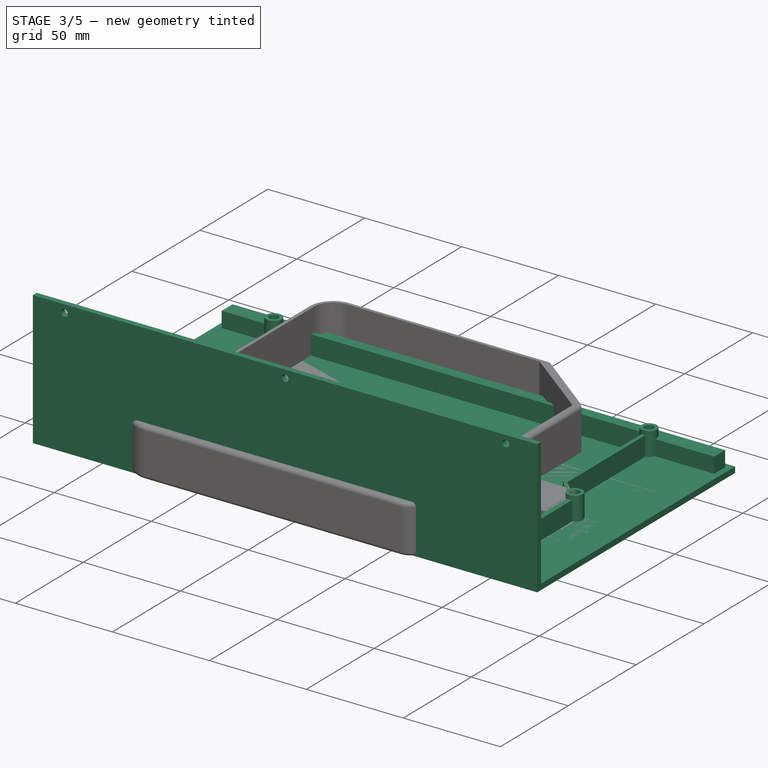
[diagram: stage 3 of 5 — iso view after this stage's code; geometry added in this stage tinted green]
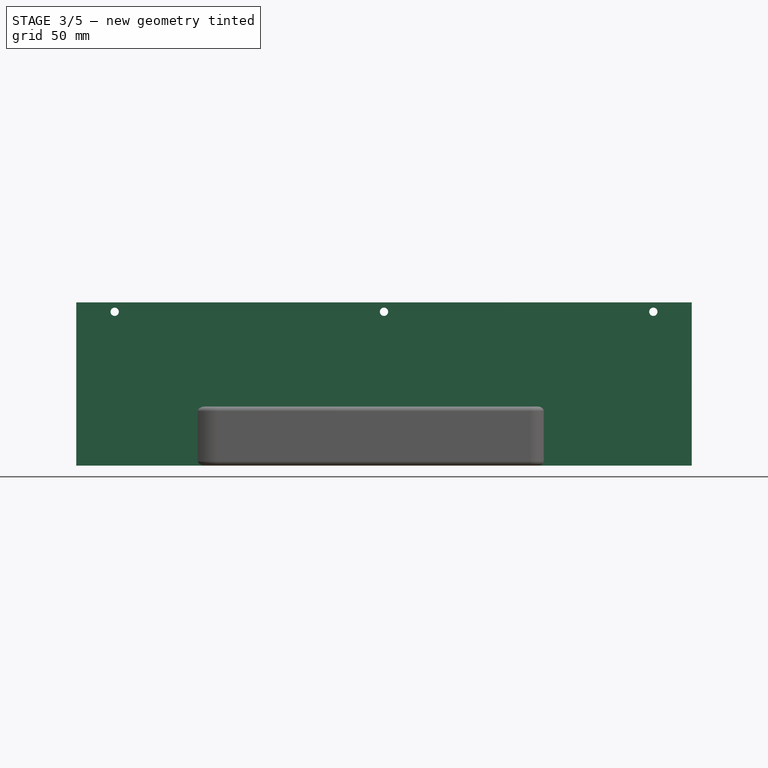
[diagram: stage 3 of 5 — front view after this stage's code; geometry added in this stage tinted green]
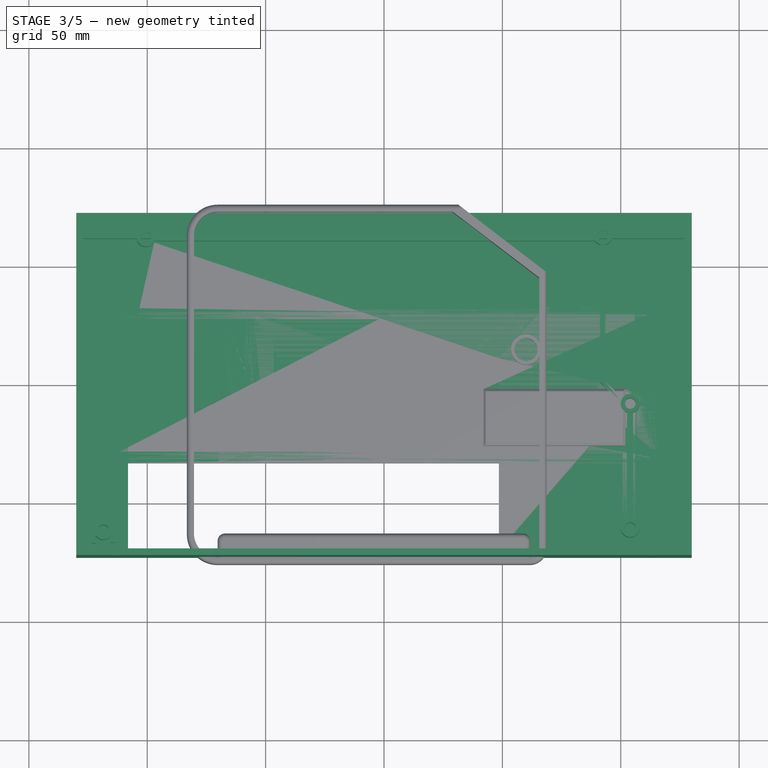
[diagram: stage 3 of 5 — top view after this stage's code; geometry added in this stage tinted green]
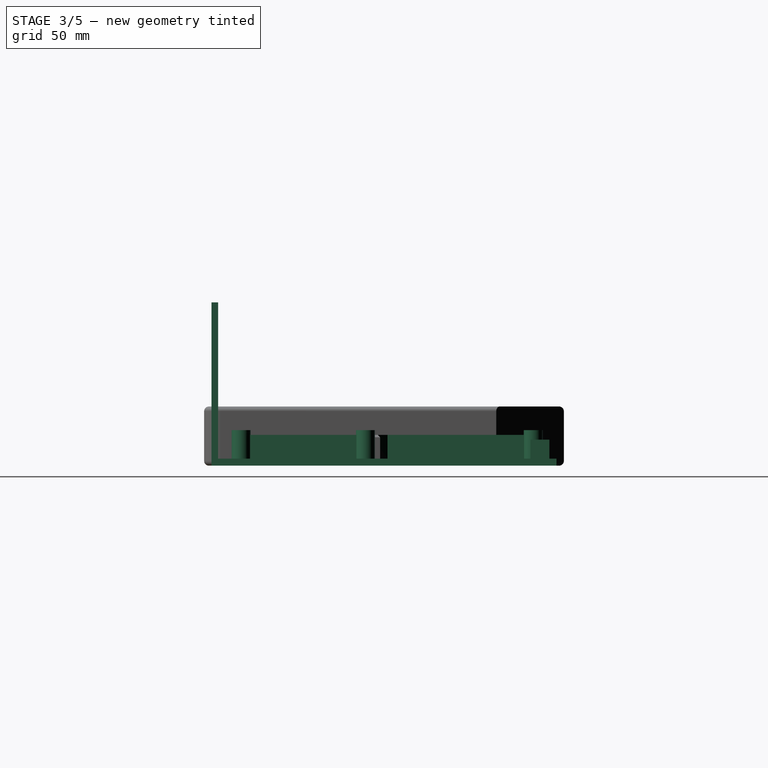
[diagram: stage 3 of 5 — right view after this stage's code; geometry added in this stage tinted green]
FEATURE [PartDesign::Body] Body001  label="KnobBody"
  Group = -> [Sketch012,Pad003,Fillet001,Sketch013,Pocket010,Fillet002,Fillet003,Sketch014,Pocket011,Sketch015,Pad004,Sketch016,Pocket012,Sketch017,Pocket013,Sketch018,Pad005,Sketch019,Pocket014,Sketch020,Pocket015]
  Origin = -> Origin003
  Tip = -> Pocket015
FEATURE [App::Part] Part001  label="KnobPart"
  Group = -> [Body001]
  Origin = -> Origin002
FEATURE [Sketcher::SketchObject] Sketch021  label="BasePad"
  FullyConstrained = true
  MapMode = 5
  Support = -> [XY_Plane005]
  expr: Constraints[10] = <<p>>.lid_length + <<p>>.lid_wall_thickness * 2
  expr: Constraints[9] = <<p>>.lid_width + <<p>>.lid_wall_thickness * 2
  sketch-geometry (4):
    g0: LineSegment StartX=-130 StartY=72.85 StartZ=0 EndX=130 EndY=72.85 EndZ=0
    g1: LineSegment StartX=130 StartY=72.85 StartZ=0 EndX=130 EndY=-72.85 EndZ=0
    g2: LineSegment StartX=130 StartY=-72.85 StartZ=0 EndX=-130 EndY=-72.85 EndZ=0
    g3: LineSegment StartX=-130 StartY=-72.85 StartZ=0 EndX=-130 EndY=72.85 EndZ=0
  constraints (11):
    c: Coincident(g0,g1)
    c: Coincident(g1,g2)
    c: Coincident(g2,g3)
    c: Coincident(g3,g0)
    c: Horizontal(g0)
    c: Horizontal(g2)
    c: Vertical(g1)
    c: Vertical(g3)
    c: Symmetric(g0,g2,g-1)
    c: DistanceX(g0,g0) = 260
    c: DistanceY(g1,g1) = 145.7
FEATURE [PartDesign::Pad] Pad006  label="BasePad001"
  Direction = (0,0,1)
  Length = 3
  Length2 = 10
  Profile = -> Sketch021
  ReferenceAxis = -> Sketch021 [N_Axis]
  Type = 0
  expr: Length = <<p>>.lid_wall_thickness
FEATURE [Sketcher::SketchObject] Sketch022  label="HeatSinkPocketSketch"
  FullyConstrained = true
  MapMode = 5
  Placement = pos=(0,0,3) rot=(0,0,1;0rad)
  Support = -> [Pad006]
  expr: Constraints[10] = <<p>>.lid_length / 2 - <<p>>.heat_sink_clearance / 2
  expr: Constraints[11] = <<p>>.lid_width / 2 - <<p>>.heat_sink_edge + <<p>>.heat_sink_clearance / 2 + 4
  expr: Constraints[8] = <<p>>.heat_sink_length + <<p>>.heat_sink_clearance
  expr: Constraints[9] = <<p>>.heat_sink_width + <<p>>.heat_sink_clearance + 4
  sketch-geometry (4):
    g0: LineSegment StartX=-108.1 StartY=11.45 StartZ=0 EndX=48.5 EndY=11.45 EndZ=0
    g1: LineSegment StartX=48.5 StartY=11.45 StartZ=0 EndX=48.5 EndY=-69.75 EndZ=0
    g2: LineSegment StartX=48.5 StartY=-69.75 StartZ=0 EndX=-108.1 EndY=-69.75 EndZ=0
    g3: LineSegment StartX=-108.1 StartY=-69.75 StartZ=0 EndX=-108.1 EndY=11.45 EndZ=0
  constraints (12):
    c: Coincident(g0,g1)
    c: Coincident(g1,g2)
    c: Coincident(g2,g3)
    c: Coincident(g3,g0)
    c: Horizontal(g0)
    c: Horizontal(g2)
    c: Vertical(g1)
    c: Vertical(g3)
    c: DistanceY(g1,g1) = 81.2
    c: DistanceX(g0,g0) = 156.6
    c: DistanceY(g1,g-1) = 69.75
    c: DistanceX(g2,g-1) = 108.1
FEATURE [PartDesign::Pocket] Pocket016  label="HeatSinkPocket"
  BaseFeature = -> Pad006
  Direction = (0,0,-1)
  Length = 3
  Length2 = 5
  Profile = -> Sketch022
  ReferenceAxis = -> Sketch022 [N_Axis]
  Type = 0
  expr: Length = <<p>>.lid_wall_thickness
FEATURE [Sketcher::SketchObject] Sketch023  label="LugSketch"
  FullyConstrained = true
  MapMode = 5
  Placement = pos=(0,0,3) rot=(0,0,1;0rad)
  Support = -> [Pocket016]
  expr: Constraints[14] = <<p>>.disp_lug_diameter
  expr: Constraints[15] = <<p>>.lid_length / 2 - 8.5
  expr: Constraints[16] = <<p>>.lid_width / 2 - 8.5
  expr: Constraints[17] = <<p>>.lid_length / 2 - 7.5
  expr: Constraints[18] = <<p>>.lid_width / 2 - 26.5
  expr: Constraints[19] = <<p>>.lid_length / 2 - 6.8
  expr: Constraints[20] = <<p>>.lid_width / 2 - 34.5
  expr: Constraints[21] = <<p>>.lid_length / 2 - 9.5
  expr: Constraints[22] = <<p>>.lid_width / 2 - 23
  expr: Constraints[23] = <<p>>.lid_width / 2 - 23
  expr: Constraints[9] = <<p>>.disp_lug_hole_diameter
  sketch-geometry (10):
    g0: Circle CenterX=-100.5 CenterY=62.35 CenterZ=0 NormalX=0 NormalY=0 NormalZ=1 AngleXU=0 Radius=4
    g1: Circle CenterX=-118.5 CenterY=-61.35 CenterZ=0 NormalX=0 NormalY=0 NormalZ=1 AngleXU=0 Radius=4
    g2: Circle CenterX=104 CenterY=-60.35 CenterZ=0 NormalX=0 NormalY=0 NormalZ=1 AngleXU=0 Radius=4
    g3: Circle CenterX=104 CenterY=-7.85 CenterZ=0 NormalX=0 NormalY=0 NormalZ=1 AngleXU=0 Radius=4
    g4: Circle CenterX=92.5 CenterY=63.05 CenterZ=0 NormalX=0 NormalY=0 NormalZ=1 AngleXU=0 Radius=4
    g5: Circle CenterX=-100.5 CenterY=62.35 CenterZ=0 NormalX=0 NormalY=0 NormalZ=1 AngleXU=0 Radius=2.25
    g6: Circle CenterX=92.5 CenterY=63.05 CenterZ=0 NormalX=0 NormalY=0 NormalZ=1 AngleXU=0 Radius=2.25
    g7: Circle CenterX=104 CenterY=-7.85 CenterZ=0 NormalX=0 NormalY=0 NormalZ=1 AngleXU=0 Radius=2.25
    g8: Circle CenterX=104 CenterY=-60.35 CenterZ=0 NormalX=0 NormalY=0 NormalZ=1 AngleXU=0 Radius=2.25
    g9: Circle CenterX=-118.5 CenterY=-61.35 CenterZ=0 NormalX=0 NormalY=0 NormalZ=1 AngleXU=0 Radius=2.25
  constraints (22):
    c: Coincident(g5,g0)
    c: Coincident(g6,g4)
    c: Coincident(g7,g3)
    c: Coincident(g8,g2)
    c: Coincident(g9,g1)
    c: Equal(g6,g5)
    c: Equal(g6,g9)
    c: Equal(g6,g7)
    c: Equal(g6,g8)
    c: Diameter(g6) = 4.5
    c: Equal(g0, g1-g4) x4
    c: Diameter(g0) = 8
    c: DistanceY(g1,g-1) = 61.35
    c: DistanceX(g1,g-1) = 118.5
    c: DistanceY(g-1,g0) = 62.35
    c: DistanceX(g0,g-1) = 100.5
    c: DistanceY(g-1,g4) = 63.05
    c: DistanceX(g-1,g4) = 92.5
    c: DistanceY(g2,g-1) = 60.35
    c: DistanceX(g-1,g2) = 104
    c: DistanceX(g-1,g3) = 104
    c: DistanceY(g2,g3) = 52.5
FEATURE [PartDesign::Pad] Pad007  label="Lugs"
  BaseFeature = -> Pocket016
  Direction = (0,0,1)
  Length = 12
  Length2 = 10
  Profile = -> Sketch023
  ReferenceAxis = -> Sketch023 [N_Axis]
  Type = 0
  expr: Length = <<p>>.body_lug_height
FEATURE [Sketcher::SketchObject] Sketch024  label="BottomSketch"
  FullyConstrained = true
  MapMode = 5
  Placement = pos=(0,0,3) rot=(0,0,1;0rad)
  Support = -> [Pad007]
  expr: Constraints[10] = <<p>>.lid_length / 2 + <<p>>.lid_wall_thickness
  expr: Constraints[11] = <<p>>.lid_width / 2 + <<p>>.lid_wall_thickness
  expr: Constraints[8] = <<p>>.lid_width + <<p>>.lid_wall_thickness * 2
  expr: Constraints[9] = <<p>>.lid_wall_thickness - <<p>>.lid_wall_clearance
  sketch-geometry (4):
    g0: LineSegment StartX=-130 StartY=-70.05 StartZ=0 EndX=130 EndY=-70.05 EndZ=0
    g1: LineSegment StartX=130 StartY=-70.05 StartZ=0 EndX=130 EndY=-72.85 EndZ=0
    g2: LineSegment StartX=130 StartY=-72.85 StartZ=0 EndX=-130 EndY=-72.85 EndZ=0
    g3: LineSegment StartX=-130 StartY=-72.85 StartZ=0 EndX=-130 EndY=-70.05 EndZ=0
  constraints (12):
    c: Coincident(g0,g1)
    c: Coincident(g1,g2)
    c: Coincident(g2,g3)
    c: Coincident(g3,g0)
    c: Horizontal(g0)
    c: Horizontal(g2)
    c: Vertical(g1)
    c: Vertical(g3)
    c: DistanceX(g0,g0) = 260
    c: DistanceY(g1,g1) = 2.8
    c: DistanceY(g1,g-1) = 72.85
    c: DistanceX(g0,g-1) = 130
FEATURE [PartDesign::Pad] Pad008  label="Bottom"
  BaseFeature = -> Pad007
  Direction = (0,0,1)
  Length = 66
  Length2 = 10
  Profile = -> Sketch024
  ReferenceAxis = -> Sketch024 [N_Axis]
  Type = 0
  expr: Length = <<p>>.body_lug_height + <<p>>.radio_thickness + <<p>>.lid_thickness + <<p>>.lid_support_thickness + 5
FEATURE [Sketcher::SketchObject] Sketch025  label="HolesSketch"
  FullyConstrained = true
  MapMode = 5
  Placement = pos=(0,-72.85,0) rot=(1,0,0;1.5708rad)
  Support = -> [Pad008]
  expr: Constraints[3] = <<p>>.m3_diameter
  expr: Constraints[4] = <<p>>.body_lug_height + <<p>>.radio_thickness + <<p>>.lid_thickness + <<p>>.lid_support_thickness + 5 + <<p>>.lid_wall_thickness - <<p>>.lid_support_thickness / 2
  expr: Constraints[5] = <<p>>.body_lug_height + <<p>>.radio_thickness + <<p>>.lid_thickness + <<p>>.lid_support_thickness + 5 + <<p>>.lid_wall_thickness - <<p>>.lid_support_thickness / 2
  expr: Constraints[6] = <<p>>.body_lug_height + <<p>>.radio_thickness + <<p>>.lid_thickness + <<p>>.lid_support_thickness + 5 + <<p>>.lid_wall_thickness - <<p>>.lid_support_thickness / 2
  expr: Constraints[7] = <<p>>.lid_width / 2 - <<p>>.lid_wall_thickness - <<p>>.lid_support_thickness - <<p>>.lid_hole_diameter / 2
  expr: Constraints[8] = <<p>>.lid_width / 2 - <<p>>.lid_wall_thickness - <<p>>.lid_support_thickness - <<p>>.lid_hole_diameter / 2
  sketch-geometry (3):
    g0: Circle CenterX=0 CenterY=65 CenterZ=0 NormalX=0 NormalY=0 NormalZ=1 AngleXU=0 Radius=1.75
    g1: Circle CenterX=113.75 CenterY=65 CenterZ=0 NormalX=0 NormalY=0 NormalZ=1 AngleXU=0 Radius=1.75
    g2: Circle CenterX=-113.75 CenterY=65 CenterZ=0 NormalX=0 NormalY=0 NormalZ=1 AngleXU=0 Radius=1.75
  constraints (9):
    c: PointOnObject(g0,g-2)
    c: Equal(g2,g0)
    c: Equal(g2,g1)
    c: Diameter(g2) = 3.5
    c: DistanceY(g-1,g2) = 65
    c: DistanceY(g-1,g0) = 65
    c: DistanceY(g-1,g1) = 65
    c: DistanceX(g0,g1) = 113.75
    c: DistanceX(g2,g0) = 113.75
FEATURE [PartDesign::Pocket] Pocket017  label="M3Pockets"
  BaseFeature = -> Pad008
  Direction = (0,1,-2e-16)
  Length = 3
  Length2 = 5
  Profile = -> Sketch025
  ReferenceAxis = -> Sketch025 [N_Axis]
  Type = 0
  expr: Length = <<p>>.lid_wall_thickness
FEATURE [Sketcher::SketchObject] Sketch026  label="InnerSupportsSketc"
  FullyConstrained = true
  MapMode = 5
  Placement = pos=(0,0,3) rot=(0,0,1;0rad)
  Support = -> [Pocket017]
  sketch-geometry (22):
    g0: LineSegment StartX=89.93 StartY=60.85 StartZ=0 EndX=-98.03 EndY=60.85 EndZ=0
    g1: LineSegment StartX=-98.03 StartY=60.85 StartZ=0 EndX=-98.03 EndY=63.03 EndZ=0
    g2: LineSegment StartX=-98.03 StartY=63.03 StartZ=0 EndX=89.93 EndY=63.03 EndZ=0
    g3: LineSegment StartX=89.93 StartY=63.03 StartZ=0 EndX=89.93 EndY=60.85 EndZ=0
    g4: LineSegment StartX=91.4 StartY=59.74 StartZ=0 EndX=91.4 EndY=1.1 EndZ=0
    g5: LineSegment StartX=91.4 StartY=1.1 StartZ=0 EndX=100.73 EndY=-8.07 EndZ=0
    g6: LineSegment StartX=100.73 StartY=-8.07 StartZ=0 EndX=101.45 EndY=-6.16 EndZ=0
    g7: LineSegment StartX=101.45 StartY=-6.16 StartZ=0 EndX=93.31 EndY=1.5 EndZ=0
    g8: LineSegment StartX=93.31 StartY=1.5 StartZ=0 EndX=93.31 EndY=59.74 EndZ=0
    g9: LineSegment StartX=93.31 StartY=59.74 StartZ=0 EndX=91.4 EndY=59.74 EndZ=0
    g10: LineSegment StartX=102.67 StartY=-11.36 StartZ=0 EndX=105.17 EndY=-11.36 EndZ=0
    g11: LineSegment StartX=105.17 StartY=-11.36 StartZ=0 EndX=105.17 EndY=-57.42 EndZ=0
    g12: LineSegment StartX=105.17 StartY=-57.42 StartZ=0 EndX=102.67 EndY=-57.42 EndZ=0
    g13: LineSegment StartX=102.67 StartY=-57.42 StartZ=0 EndX=102.67 EndY=-11.36 EndZ=0
    g14: LineSegment StartX=-115.58 StartY=-56.48 StartZ=0 EndX=-113.67 EndY=-56.48 EndZ=0
    g15: LineSegment StartX=-113.67 StartY=-56.48 StartZ=0 EndX=-113.67 EndY=-66.53 EndZ=0
    g16: LineSegment StartX=-113.67 StartY=-66.53 StartZ=0 EndX=-115.58 EndY=-66.53 EndZ=0
    g17: LineSegment StartX=-115.58 StartY=-66.53 StartZ=0 EndX=-115.58 EndY=-56.48 EndZ=0
    g18: LineSegment StartX=-121.74 StartY=-56.71 StartZ=0 EndX=-123.67 EndY=-56.71 EndZ=0
    g19: LineSegment StartX=-123.67 StartY=-56.71 StartZ=0 EndX=-123.67 EndY=-66.82 EndZ=0
    g20: LineSegment StartX=-123.67 StartY=-66.82 StartZ=0 EndX=-121.74 EndY=-66.82 EndZ=0
    g21: LineSegment StartX=-121.74 StartY=-66.82 StartZ=0 EndX=-121.74 EndY=-56.71 EndZ=0
  constraints (66):
    c: Coincident(g0,g1)
    c: Coincident(g1,g2)
    c: Coincident(g2,g3)
    c: Coincident(g3,g0)
    c: Horizontal(g0)
    c: Horizontal(g2)
    c: Vertical(g1)
    c: Vertical(g3)
    c: DistanceX(g2,g2) = 187.96
    c: DistanceY(g1,g1) = 2.18
    c: DistanceX(g0,g-1) = 98.03
    c: DistanceY(g-1,g0) = 60.85
    c: Vertical(g4)
    c: Coincident(g4,g5)
    c: Coincident(g5,g6)
    c: Coincident(g6,g7)
    c: Coincident(g7,g8)
    c: Vertical(g8)
    c: Coincident(g8,g9)
    c: Coincident(g9,g4)
    c: Horizontal(g9)
    c: DistanceX(g9,g9) = 1.91
    c: DistanceY(g6,g6) = 1.91
    c: DistanceY(g7,g7) = 7.66
    c: DistanceY(g5,g5) = 9.17
    c: DistanceY(g8,g8) = 58.24
    c: DistanceX(g-1,g4) = 91.4
    c: DistanceX(g7,g5) = 7.42
    c: DistanceX(g7,g6) = 8.14
    c: DistanceY(g-1,g4) = 59.74
    c: Coincident(g10,g11)
    c: Coincident(g11,g12)
    c: Coincident(g12,g13)
    c: Coincident(g13,g10)
    c: Horizontal(g10)
    c: Horizontal(g12)
    c: Vertical(g11)
    c: Vertical(g13)
    c: DistanceX(g10,g10) = 2.5
    c: DistanceX(g-1,g10) = 102.67
    c: DistanceY(g10,g-1) = 11.36
    c: DistanceY(g13,g13) = 46.06
    c: Coincident(g14,g15)
    c: Coincident(g15,g16)
    c: Coincident(g16,g17)
    c: Coincident(g17,g14)
    c: Horizontal(g14)
    c: Horizontal(g16)
    c: Vertical(g15)
    c: Vertical(g17)
    c: DistanceX(g14,g-1) = 113.67
    c: DistanceX(g14,g14) = 1.91
    c: DistanceY(g14,g-1) = 56.48
    c: DistanceY(g15,g15) = 10.05
    c: Coincident(g18,g19)
    c: Coincident(g19,g20)
    c: Coincident(g20,g21)
    c: Coincident(g21,g18)
    c: Horizontal(g18)
    c: Horizontal(g20)
    c: Vertical(g19)
    c: Vertical(g21)
    c: DistanceX(g18,g18) = 1.93
    c: DistanceX(g18,g14) = 6.16
    c: DistanceY(g21,g21) = 10.11
    c: DistanceY(g18,g14) = 0.23
FEATURE [PartDesign::Pad] Pad009  label="InnerBodySupports"
  BaseFeature = -> Pocket017
  Direction = (0,0,1)
  Length = 10
  Length2 = 10
  Profile = -> Sketch026
  ReferenceAxis = -> Sketch026 [N_Axis]
  Type = 0
FEATURE [Sketcher::SketchObject] Sketch027  label="TopScrewBase"
  FullyConstrained = true
  MapMode = 5
  Placement = pos=(0,0,3) rot=(0,0,1;0rad)
  Support = -> [Pad009]
  expr: Constraints[10] = <<p>>.lid_length / 2
  expr: Constraints[11] = <<p>>.lid_support_thickness
  expr: Constraints[8] = <<p>>.lid_width
  expr: Constraints[9] = <<p>>.lid_width / 2
  sketch-geometry (4):
    g0: LineSegment StartX=-127 StartY=69.85 StartZ=0 EndX=127 EndY=69.85 EndZ=0
    g1: LineSegment StartX=127 StartY=69.85 StartZ=0 EndX=127 EndY=61.85 EndZ=0
    g2: LineSegment StartX=127 StartY=61.85 StartZ=0 EndX=-127 EndY=61.85 EndZ=0
    g3: LineSegment StartX=-127 StartY=61.85 StartZ=0 EndX=-127 EndY=69.85 EndZ=0
  constraints (12):
    c: Coincident(g0,g1)
    c: Coincident(g1,g2)
    c: Coincident(g2,g3)
    c: Coincident(g3,g0)
    c: Horizontal(g0)
    c: Horizontal(g2)
    c: Vertical(g1)
    c: Vertical(g3)
    c: DistanceX(g0,g0) = 254
    c: DistanceX(g2,g-1) = 127
    c: DistanceY(g-1,g0) = 69.85
    c: DistanceY(g1,g1) = 8
FEATURE [PartDesign::Pad] Pad010  label="InsertPad"
  BaseFeature = -> Pad009
  Direction = (0,0,1)
  Length = 8
  Length2 = 10
  Profile = -> Sketch027
  ReferenceAxis = -> Sketch027 [N_Axis]
  Type = 0
  expr: Length = <<p>>.lid_support_thickness
FEATURE [PartDesign::Body] Body002  label="BaseBody"
  Group = -> [Sketch021,Pad006,Sketch022,Pocket016,Sketch023,Pad007,Sketch024,Pad008,Sketch025,Pocket017,Sketch026,Pad009,Sketch027,Pad010,Sketch028,Pocket018,Sketch029,Pocket019,Sketch030,Pad011,Sketch031,Pocket020,Sketch032,Pocket021,Sketch033,Pocket022]
  Origin = -> Origin005
  Tip = -> Pocket022
FEATURE [App::Part] Part002  label="BasePart"
  Group = -> [Body002]
  Origin = -> Origin004
FEATURE [Sketcher::SketchObject] Sketch034  label="TopPlateBaseSketch"
  FullyConstrained = true
  MapMode = 5
  Support = -> [XY_Plane007]
  expr: Constraints[10] = <<p>>.body_lug_height + <<p>>.radio_thickness + <<p>>.lid_thickness + <<p>>.lid_support_thickness + 5
  expr: Constraints[9] = <<p>>.lid_width + <<p>>.lid_wall_thickness * 2
  sketch-geometry (4):
    g0: LineSegment StartX=-130 StartY=33 StartZ=0 EndX=130 EndY=33 EndZ=0
    g1: LineSegment StartX=130 StartY=33 StartZ=0 EndX=130 EndY=-33 EndZ=0
    g2: LineSegment StartX=130 StartY=-33 StartZ=0 EndX=-130 EndY=-33 EndZ=0
    g3: LineSegment StartX=-130 StartY=-33 StartZ=0 EndX=-130 EndY=33 EndZ=0
  constraints (11):
    c: Coincident(g0,g1)
    c: Coincident(g1,g2)
    c: Coincident(g2,g3)
    c: Coincident(g3,g0)
    c: Horizontal(g0)
    c: Horizontal(g2)
    c: Vertical(g1)
    c: Vertical(g3)
    c: Symmetric(g0,g2,g-1)
    c: DistanceX(g0,g0) = 260
    c: DistanceY(g3,g3) = 66
FEATURE [PartDesign::Pad] Pad012  label="TopPlatePad"
  Direction = (0,0,1)
  Length = 3
  Length2 = 10
  Profile = -> Sketch034
  ReferenceAxis = -> Sketch034 [N_Axis]
  Type = 0
  expr: Length = <<p>>.lid_wall_thickness
FEATURE [Sketcher::SketchObject] Sketch035  label="M3HolesSketch"
  FullyConstrained = true
  MapMode = 5
  Placement = pos=(0,0,3) rot=(0,0,1;0rad)
  Support = -> [Pad012]
  expr: Constraints[10] = (<<p>>.body_lug_height + <<p>>.radio_thickness + <<p>>.lid_thickness + <<p>>.lid_support_thickness + 5) / 2 - <<p>>.lid_support_thickness / 2
  expr: Constraints[11] = (<<p>>.body_lug_height + <<p>>.radio_thickness + <<p>>.lid_thickness + <<p>>.lid_support_thickness + 5) / 2 - <<p>>.lid_support_thickness / 2
  expr: Constraints[12] = (<<p>>.body_lug_height + <<p>>.radio_thickness + <<p>>.lid_thickness + <<p>>.lid_support_thickness + 5) / 2 - <<p>>.lid_support_thickness / 2
  expr: Constraints[13] = (<<p>>.body_lug_height + <<p>>.radio_thickness + <<p>>.lid_thickness + <<p>>.lid_support_thickness + 5) / 2 - <<p>>.lid_support_thickness / 2
  expr: Constraints[14] = <<p>>.lid_width / 2 - <<p>>.lid_wall_thickness - <<p>>.lid_support_thickness - <<p>>.lid_hole_diameter / 2
  expr: Constraints[15] = <<p>>.lid_width / 2 - <<p>>.lid_wall_thickness - <<p>>.lid_support_thickness - <<p>>.lid_hole_diameter / 2
  expr: Constraints[16] = <<p>>.lid_width / 2 - <<p>>.lid_wall_thickness - <<p>>.lid_support_thickness - <<p>>.lid_hole_diameter / 2
  expr: Constraints[17] = <<p>>.lid_width / 2 - <<p>>.lid_wall_thickness - <<p>>.lid_support_thickness - <<p>>.lid_hole_diameter / 2
  expr: Constraints[7] = <<p>>.lid_hole_diameter
  expr: Constraints[8] = (<<p>>.body_lug_height + <<p>>.radio_thickness + <<p>>.lid_thickness + <<p>>.lid_support_thickness + 5) / 2 - <<p>>.lid_support_thickness / 2
  expr: Constraints[9] = (<<p>>.body_lug_height + <<p>>.radio_thickness + <<p>>.lid_thickness + <<p>>.lid_support_thickness + 5) / 2 - <<p>>.lid_support_thickness / 2
  sketch-geometry (6):
    g0: Circle CenterX=-113.75 CenterY=29 CenterZ=0 NormalX=0 NormalY=0 NormalZ=1 AngleXU=0 Radius=2.25
    g1: Circle CenterX=-113.75 CenterY=-29 CenterZ=0 NormalX=0 NormalY=0 NormalZ=1 AngleXU=0 Radius=2.25
    g2: Circle CenterX=0 CenterY=29 CenterZ=0 NormalX=0 NormalY=0 NormalZ=1 AngleXU=0 Radius=2.25
    g3: Circle CenterX=0 CenterY=-29 CenterZ=0 NormalX=0 NormalY=0 NormalZ=1 AngleXU=0 Radius=2.25
    g4: Circle CenterX=113.75 CenterY=29 CenterZ=0 NormalX=0 NormalY=0 NormalZ=1 AngleXU=0 Radius=2.25
    g5: Circle CenterX=113.75 CenterY=-29 CenterZ=0 NormalX=0 NormalY=0 NormalZ=1 AngleXU=0 Radius=2.25
  constraints (14):
    c: PointOnObject(g2,g-2)
    c: PointOnObject(g3,g-2)
    c: Equal(g0, g1-g5) x5
    c: Diameter(g0) = 4.5
    c: DistanceY(g1,g-1) = 29
    c: DistanceY(g3,g-1) = 29
    c: DistanceY(g5,g-1) = 29
    c: DistanceY(g-1,g2) = 29
    c: DistanceY(g-1,g4) = 29
    c: DistanceY(g-1,g0) = 29
    c: DistanceX(g0,g2) = 113.75
    c: DistanceX(g1,g3) = 113.75
    c: DistanceX(g2,g4) = 113.75
    c: DistanceX(g3,g5) = 113.75
FEATURE [PartDesign::Pocket] Pocket023  label="M3Pockets001"
  BaseFeature = -> Pad012
  Direction = (0,0,-1)
  Length = 3
  Length2 = 5
  Profile = -> Sketch035
  ReferenceAxis = -> Sketch035 [N_Axis]
  Type = 0
  expr: Length = <<p>>.lid_wall_thickness
FEATURE [Sketcher::SketchObject] Sketch036  label="CutOutSketch"
  FullyConstrained = true
  MapMode = 5
  Placement = pos=(0,0,3) rot=(0,0,1;0rad)
  Support = -> [Pocket023]
  expr: Constraints[10] = (<<p>>.body_lug_height + <<p>>.radio_thickness + <<p>>.lid_thickness + <<p>>.lid_support_thickness + 5) / 2 - <<p>>.body_lug_height - 3.4
  expr: Constraints[11] = <<p>>.lid_width / 2 - <<p>>.lid_wall_thickness - 22
  expr: Constraints[12] = ((<<p>>.body_lug_height + <<p>>.radio_thickness + <<p>>.lid_thickness + <<p>>.lid_support_thickness + 5) / 2 - <<p>>.body_lug_height - 3.4) / 2
  expr: Constraints[13] = ((<<p>>.body_lug_height + <<p>>.radio_thickness + <<p>>.lid_thickness + <<p>>.lid_support_thickness + 5) / 2 - <<p>>.body_lug_height - 3.4) / 2
  expr: Constraints[17] = <<p>>.disp_lug_hole_diameter
  sketch-geometry (6):
    g0: LineSegment StartX=42 StartY=-1.6 StartZ=0 EndX=102 EndY=-1.6 EndZ=0
    g1: LineSegment StartX=102 StartY=-1.6 StartZ=0 EndX=102 EndY=-17.6 EndZ=0
    g2: LineSegment StartX=102 StartY=-17.6 StartZ=0 EndX=42 EndY=-17.6 EndZ=0
    g3: LineSegment StartX=42 StartY=-17.6 StartZ=0 EndX=42 EndY=-1.6 EndZ=0
    g4: Circle CenterX=32 CenterY=-8.8 CenterZ=0 NormalX=0 NormalY=0 NormalZ=1 AngleXU=0 Radius=2.25
    g5: Circle CenterX=112 CenterY=-8.8 CenterZ=0 NormalX=0 NormalY=0 NormalZ=1 AngleXU=0 Radius=2.25
  constraints (18):
    c: Coincident(g0,g1)
    c: Coincident(g1,g2)
    c: Coincident(g2,g3)
    c: Coincident(g3,g0)
    c: Horizontal(g0)
    c: Horizontal(g2)
    c: Vertical(g1)
    c: Vertical(g3)
    c: DistanceX(g0,g0) = 60
    c: DistanceY(g3,g3) = 16
    c: DistanceY(g2,g-1) = 17.6
    c: DistanceX(g-1,g1) = 102
    c: DistanceY(g4,g-1) = 8.8
    c: DistanceY(g5,g-1) = 8.8
    c: DistanceX(g-1,g4) = 32
    c: DistanceX(g-1,g5) = 112
    c: Equal(g5,g4)
    c: Diameter(g5) = 4.5
FEATURE [PartDesign::Pocket] Pocket024  label="CutoutPocket"
  BaseFeature = -> Pocket023
  Direction = (0,0,-1)
  Length = 3
  Length2 = 5
  Profile = -> Sketch036
  ReferenceAxis = -> Sketch036 [N_Axis]
  Type = 0
  expr: Length = <<p>>.lid_wall_thickness
FEATURE [PartDesign::Chamfer] Chamfer001  label="CutoutChamfer"
  Angle = 45
  Base = -> Pocket024 [Edge19,Edge17,Edge16,Edge18]
  BaseFeature = -> Pocket024
  ChamferType = 0
  FlipDirection = false
  Size = 1
  Size2 = 1
  SupportTransform = false
  UseAllEdges = false
FEATURE [Sketcher::SketchObject] Sketch038  label="M3Sketch"
  FullyConstrained = true
  MapMode = 5
  Placement = pos=(0,0,3) rot=(0,0,1;0rad)
  Support = -> [Pad013]
  expr: Constraints[10] = <<p>>.lid_length / 2 - <<p>>.lid_wall_thickness - <<p>>.lid_support_thickness - <<p>>.lid_hole_diameter / 2
  expr: Constraints[11] = <<p>>.lid_length / 2 - <<p>>.lid_wall_thickness - <<p>>.lid_support_thickness - <<p>>.lid_hole_diameter / 2
  expr: Constraints[3] = <<p>>.m3_diameter
  expr: Constraints[4] = (<<p>>.body_lug_height + <<p>>.radio_thickness + <<p>>.lid_thickness + <<p>>.lid_support_thickness + 5) / 2 - <<p>>.lid_support_thickness / 2
  expr: Constraints[5] = (<<p>>.body_lug_height + <<p>>.radio_thickness + <<p>>.lid_thickness + <<p>>.lid_support_thickness + 5) / 2 - <<p>>.lid_support_thickness / 2
  expr: Constraints[6] = (<<p>>.body_lug_height + <<p>>.radio_thickness + <<p>>.lid_thickness + <<p>>.lid_support_thickness + 5) / 2 - <<p>>.lid_support_thickness / 2
  expr: Constraints[7] = (<<p>>.body_lug_height + <<p>>.radio_thickness + <<p>>.lid_thickness + <<p>>.lid_support_thickness + 5) / 2 - <<p>>.lid_support_thickness / 2
  expr: Constraints[8] = <<p>>.lid_length / 2 - <<p>>.lid_wall_thickness - <<p>>.lid_support_thickness - <<p>>.lid_hole_diameter / 2
  expr: Constraints[9] = <<p>>.lid_length / 2 - <<p>>.lid_wall_thickness - <<p>>.lid_support_thickness - <<p>>.lid_hole_diameter / 2
  sketch-geometry (4):
    g0: Circle CenterX=-56.6 CenterY=29 CenterZ=0 NormalX=0 NormalY=0 NormalZ=1 AngleXU=0 Radius=1.75
    g1: Circle CenterX=56.6 CenterY=29 CenterZ=0 NormalX=0 NormalY=0 NormalZ=1 AngleXU=0 Radius=1.75
    g2: Circle CenterX=56.6 CenterY=-29 CenterZ=0 NormalX=0 NormalY=0 NormalZ=1 AngleXU=0 Radius=1.75
    g3: Circle CenterX=-56.6 CenterY=-29 CenterZ=0 NormalX=0 NormalY=0 NormalZ=1 AngleXU=0 Radius=1.75
  constraints (12):
    c: Equal(g0,g1)
    c: Equal(g0,g2)
    c: Equal(g0,g3)
    c: Diameter(g0) = 3.5
    c: DistanceY(g3,g-1) = 29
    c: DistanceY(g2,g-1) = 29
    c: DistanceY(g-1,g1) = 29
    c: DistanceY(g-1,g0) = 29
    c: DistanceX(g3,g-1) = 56.6
    c: DistanceX(g-1,g2) = 56.6
    c: DistanceX(g-1,g1) = 56.6
    c: DistanceX(g0,g-1) = 56.6
FEATURE [PartDesign::Pocket] Pocket025  label="M3Holes"
  BaseFeature = -> Pad013
  Direction = (0,0,-1)
  Length = 3
  Length2 = 5
  Profile = -> Sketch038
  ReferenceAxis = -> Sketch038 [N_Axis]
  Type = 0
  expr: Length = <<p>>.lid_wall_thickness
FEATURE [Sketcher::SketchObject] Sketch039  label="PiHoleSketch"
  FullyConstrained = true
  MapMode = 5
  Placement = pos=(0,0,3) rot=(0,0,1;0rad)
  Support = -> [Pocket025]
  expr: Constraints[10] = (<<p>>.body_lug_height + <<p>>.radio_thickness + <<p>>.lid_thickness + <<p>>.lid_support_thickness + 5) / 2 - <<p>>.lid_support_thickness + 1.25
  expr: Constraints[11] = <<p>>.lid_length / 2 - 56
  expr: Constraints[8] = <<p>>.pi_width
  expr: Constraints[9] = <<p>>.pi_length
  sketch-geometry (4):
    g0: LineSegment StartX=13.85 StartY=-8.45 StartZ=0 EndX=67.85 EndY=-8.45 EndZ=0
    g1: LineSegment StartX=67.85 StartY=-8.45 StartZ=0 EndX=67.85 EndY=-26.25 EndZ=0
    g2: LineSegment StartX=67.85 StartY=-26.25 StartZ=0 EndX=13.85 EndY=-26.25 EndZ=0
    g3: LineSegment StartX=13.85 StartY=-26.25 StartZ=0 EndX=13.85 EndY=-8.45 EndZ=0
  constraints (12):
    c: Coincident(g0,g1)
    c: Coincident(g1,g2)
    c: Coincident(g2,g3)
    c: Coincident(g3,g0)
    c: Horizontal(g0)
    c: Horizontal(g2)
    c: Vertical(g1)
    c: Vertical(g3)
    c: DistanceX(g0,g0) = 54
    c: DistanceY(g3,g3) = 17.8
    c: DistanceY(g2,g-1) = 26.25
    c: DistanceX(g-1,g0) = 13.85
FEATURE [PartDesign::Pocket] Pocket026  label="PiPocket"
  BaseFeature = -> Pocket025
  Direction = (0,0,-1)
  Length = 3
  Length2 = 5
  Profile = -> Sketch039
  ReferenceAxis = -> Sketch039 [N_Axis]
  Type = 0
  expr: Length = <<p>>.lid_wall_thickness
FEATURE [PartDesign::Chamfer] Chamfer002  label="PiChamfer"
  Angle = 45
  Base = -> Pocket026 [Edge26,Edge23,Edge24,Edge25]
  BaseFeature = -> Pocket026
  ChamferType = 0
  FlipDirection = false
  Size = 1
  Size2 = 1
  SupportTransform = false
  UseAllEdges = false
FEATURE [Sketcher::SketchObject] Sketch040  label="AntSketch"
  FullyConstrained = true
  MapMode = 5
  Placement = pos=(0,0,3) rot=(0,0,1;0rad)
  Support = -> [Chamfer002]
  expr: Constraints[0] = <<p>>.antenna_diameter
  expr: Constraints[1] = (<<p>>.body_lug_height + <<p>>.radio_thickness + <<p>>.lid_thickness + <<p>>.lid_support_thickness + 5) / 2 - <<p>>.antenna_diameter / 2 - 13.75
  expr: Constraints[2] = <<p>>.lid_length / 2 - <<p>>.antenna_diameter / 2 - 6
  sketch-geometry (1):
    g0: Circle CenterX=-57.05 CenterY=-12.45 CenterZ=0 NormalX=0 NormalY=0 NormalZ=1 AngleXU=0 Radius=6.8
  constraints (3):
    c: Diameter(g0) = 13.6
    c: DistanceY(g0,g-1) = 12.45
    c: DistanceX(g0,g-1) = 57.05
FEATURE [PartDesign::Pocket] Pocket027  label="AntPacket"
  BaseFeature = -> Chamfer002
  Direction = (0,0,-1)
  Length = 3
  Length2 = 5
  Profile = -> Sketch040
  ReferenceAxis = -> Sketch040 [N_Axis]
  Type = 0
  expr: Length = <<p>>.lid_wall_thickness
FEATURE [Sketcher::SketchObject] Sketch041  label="PCBSketch"
  FullyConstrained = true
  MapMode = 5
  Placement = pos=(0,0,0) rot=(1,0,0;3.14159rad)
  Support = -> [Pocket027]
  expr: Constraints[8] = <<p>>.lid_length / 2
  expr: Constraints[9] = (<<p>>.body_lug_height + <<p>>.radio_thickness + <<p>>.lid_thickness + <<p>>.lid_support_thickness + 5) / 2 - 13.65
  sketch-geometry (4):
    g0: LineSegment StartX=13.21 StartY=19.35 StartZ=0 EndX=-69.85 EndY=19.35 EndZ=0
    g1: LineSegment StartX=-69.85 StartY=19.35 StartZ=0 EndX=-69.85 EndY=21.07 EndZ=0
    g2: LineSegment StartX=-69.85 StartY=21.07 StartZ=0 EndX=13.21 EndY=21.07 EndZ=0
    g3: LineSegment StartX=13.21 StartY=21.07 StartZ=0 EndX=13.21 EndY=19.35 EndZ=0
  constraints (12):
    c: Coincident(g0,g1)
    c: Coincident(g1,g2)
    c: Coincident(g2,g3)
    c: Coincident(g3,g0)
    c: Horizontal(g0)
    c: Horizontal(g2)
    c: Vertical(g1)
    c: Vertical(g3)
    c: DistanceX(g0,g-1) = 69.85
    c: DistanceY(g-1,g0) = 19.35
    c: DistanceY(g1,g1) = 1.72
    c: DistanceX(g0,g0) = 83.06
FEATURE [PartDesign::Pocket] Pocket028  label="PCBPocket"
  BaseFeature = -> Pocket027
  Direction = (0,0,1)
  Length = 1
  Length2 = 5
  Profile = -> Sketch041
  ReferenceAxis = -> Sketch041 [N_Axis]
  Type = 0
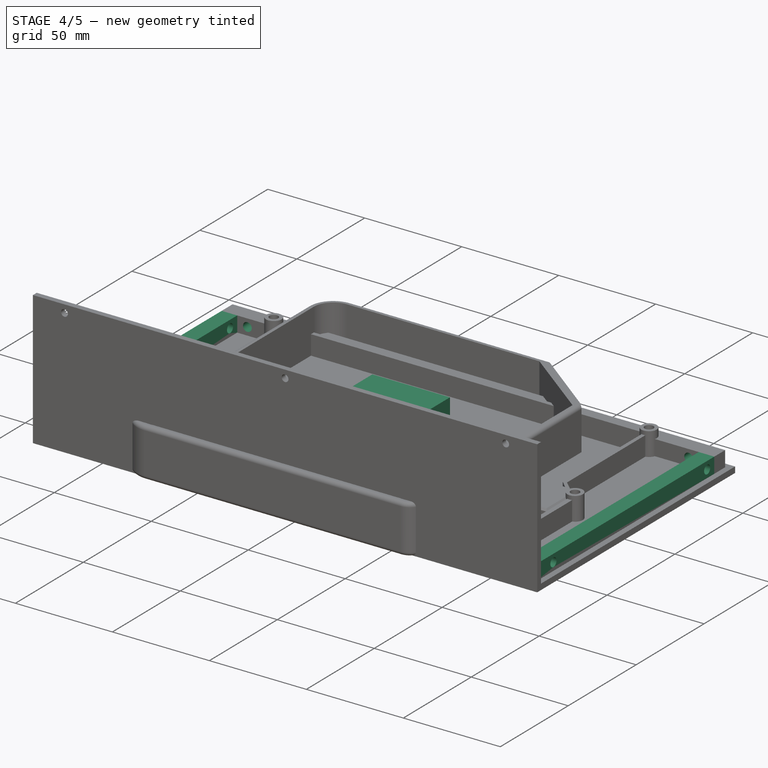
[diagram: stage 4 of 5 — iso view after this stage's code; geometry added in this stage tinted green]
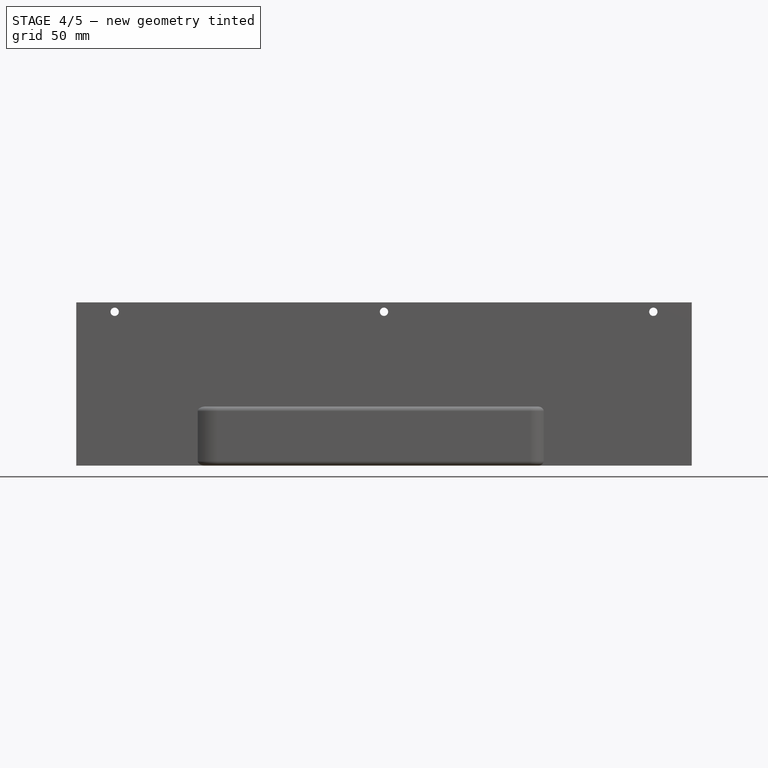
[diagram: stage 4 of 5 — front view after this stage's code; geometry added in this stage tinted green]
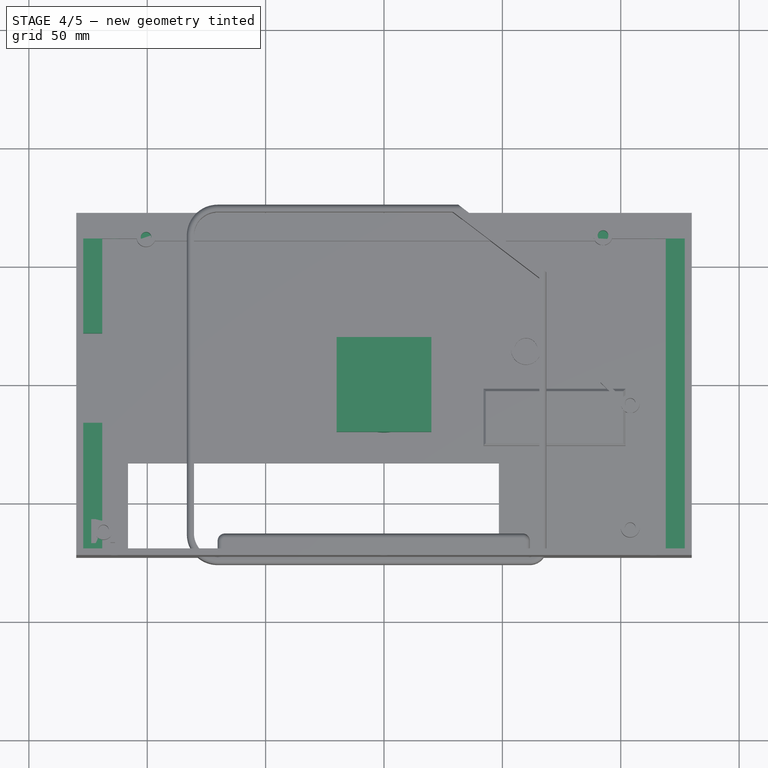
[diagram: stage 4 of 5 — top view after this stage's code; geometry added in this stage tinted green]
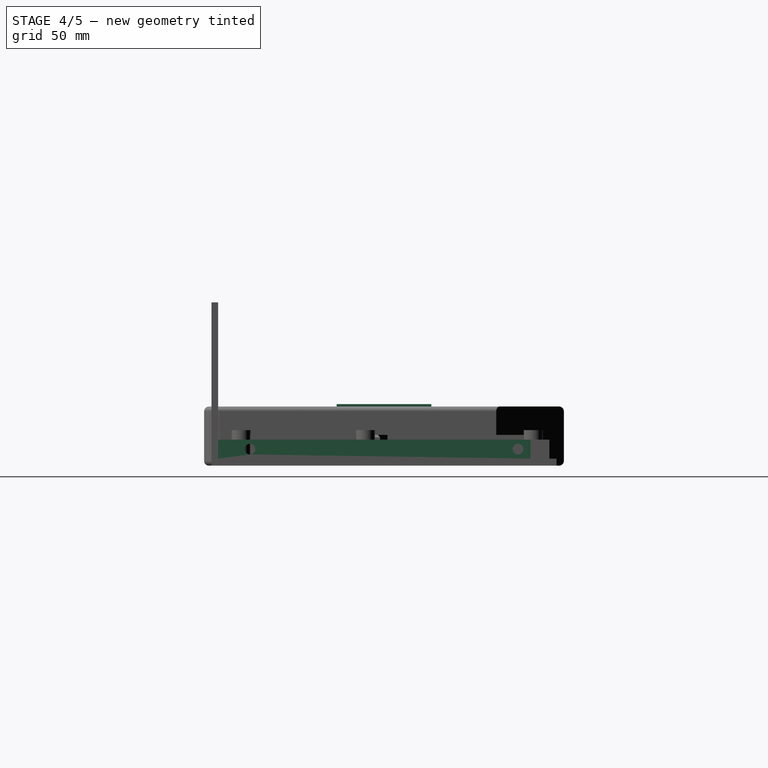
[diagram: stage 4 of 5 — right view after this stage's code; geometry added in this stage tinted green]
FEATURE [PartDesign::Body] Body  label="LidBody"
  Group = -> [Sketch,Pad,Fillet,Sketch001,Pad001,Sketch002,Pocket,Sketch003,Pocket001,Chamfer,Sketch004,Pad002,Sketch005,Pocket002,Sketch006,Pocket003,Sketch007,Pocket004,ShapeString,Pocket005,Sketch008,Pocket006,Sketch009,Pocket007,Sketch010,Pocket008,Sketch011,Pocket009]
  Origin = -> Origin001
  Tip = -> Pocket009
FEATURE [App::Part] Part  label="LidPart"
  Group = -> [Body]
  Origin = -> Origin
FEATURE [Sketcher::SketchObject] Sketch012  label="KnobBodySketch"
  FullyConstrained = true
  MapMode = 5
  Support = -> [XY_Plane003]
  sketch-geometry (1):
    g0: Circle CenterX=0 CenterY=0 CenterZ=0 NormalX=0 NormalY=0 NormalZ=1 AngleXU=0 Radius=20
  constraints (2):
    c: Coincident(g0,g-1)
    c: Diameter(g0) = 40
FEATURE [PartDesign::Pad] Pad003
  Direction = (0,0,1)
  Length = 16
  Length2 = 10
  Profile = -> Sketch012
  ReferenceAxis = -> Sketch012 [N_Axis]
  Type = 0
  expr: Length = <<p>>.knob_length
FEATURE [PartDesign::Fillet] Fillet001  label="KnobFillet"
  Base = -> Pad003 [Edge3,Edge2]
  BaseFeature = -> Pad003
  Radius = 1
  SupportTransform = false
  UseAllEdges = false
FEATURE [Sketcher::SketchObject] Sketch013  label="FingerHoleSketch"
  FullyConstrained = true
  MapMode = 5
  Placement = pos=(0,0,0) rot=(1,0,0;3.14159rad)
  Support = -> [Fillet001]
  expr: Constraints[0] = <<p>>.knob_finger_diameter
  sketch-geometry (1):
    g0: Circle CenterX=10 CenterY=0 CenterZ=0 NormalX=0 NormalY=0 NormalZ=1 AngleXU=0 Radius=6.5
  constraints (3):
    c: Diameter(g0) = 13
    c: DistanceY(g-1,g0) = 0
    c: DistanceX(g-1,g0) = 10
FEATURE [PartDesign::Pocket] Pocket010  label="FingerHolePocket"
  BaseFeature = -> Fillet001
  Direction = (0,0,1)
  Length = 7
  Length2 = 5
  Profile = -> Sketch013
  ReferenceAxis = -> Sketch013 [N_Axis]
  Type = 0
FEATURE [PartDesign::Fillet] Fillet002  label="FingerHoleFilet"
  Base = -> Pocket010 [Edge10]
  BaseFeature = -> Pocket010
  Radius = 6.5
  SupportTransform = false
  UseAllEdges = false
FEATURE [PartDesign::Fillet] Fillet003  label="FingerHoleOuterFilet"
  Base = -> Fillet002 [Edge3]
  BaseFeature = -> Fillet002
  Radius = 1
  SupportTransform = false
  UseAllEdges = false
FEATURE [Sketcher::SketchObject] Sketch014  label="KnobHoleSketch"
  FullyConstrained = true
  MapMode = 5
  Placement = pos=(0,0,16) rot=(0,0,1;0rad)
  Support = -> [Fillet003]
  expr: Constraints[1] = <<p>>.knob_hole_diameter
  sketch-geometry (1):
    g0: Circle CenterX=0 CenterY=0 CenterZ=0 NormalX=0 NormalY=0 NormalZ=1 AngleXU=0 Radius=3.3
  constraints (2):
    c: Coincident(g0,g-1)
    c: Diameter(g0) = 6.6
FEATURE [PartDesign::Pocket] Pocket011  label="KnobHolePocket"
  BaseFeature = -> Fillet003
  Direction = (0,0,-1)
  Length = 14
  Length2 = 5
  Profile = -> Sketch014
  ReferenceAxis = -> Sketch014 [N_Axis]
  Type = 0
  expr: Length = <<p>>.knob_hole_depth
FEATURE [Sketcher::SketchObject] Sketch015  label="KnobFlatSketch"
  FullyConstrained = true
  MapMode = 5
  Placement = pos=(0,0,2) rot=(0,0,1;0rad)
  Support = -> [Pocket011]
  expr: Constraints[11] = <<p>>.knob_hole_diameter / 2 - (<<p>>.knob_hole_diameter - <<p>>.knob_hole_cut_width)
  sketch-geometry (4):
    g0: LineSegment StartX=-5.4 StartY=5 StartZ=0 EndX=-1.4 EndY=5 EndZ=0
    g1: LineSegment StartX=-1.4 StartY=5 StartZ=0 EndX=-1.4 EndY=-5 EndZ=0
    g2: LineSegment StartX=-1.4 StartY=-5 StartZ=0 EndX=-5.4 EndY=-5 EndZ=0
    g3: LineSegment StartX=-5.4 StartY=-5 StartZ=0 EndX=-5.4 EndY=5 EndZ=0
  constraints (12):
    c: Coincident(g0,g1)
    c: Coincident(g1,g2)
    c: Coincident(g2,g3)
    c: Coincident(g3,g0)
    c: Horizontal(g0)
    c: Horizontal(g2)
    c: Vertical(g1)
    c: Vertical(g3)
    c: DistanceY(g3,g3) = 10
    c: DistanceX(g0,g0) = 4
    c: DistanceY(g1,g-1) = 5
    c: DistanceX(g0,g-1) = 1.4
FEATURE [PartDesign::Pad] Pad004  label="KnobHoleFlat"
  BaseFeature = -> Pocket011
  Direction = (0,0,1)
  Length = 10
  Length2 = 10
  Profile = -> Sketch015
  ReferenceAxis = -> Sketch015 [N_Axis]
  Type = 0
  expr: Length = <<p>>.knob_hole_cut_depth
FEATURE [Sketcher::SketchObject] Sketch016
  FullyConstrained = true
  MapMode = 5
  Placement = pos=(0,0,16) rot=(0,0,1;0rad)
  Support = -> [Pad004]
  expr: Constraints[1] = <<p>>.knob_diameter - 5
  sketch-geometry (1):
    g0: Circle CenterX=0 CenterY=0 CenterZ=0 NormalX=0 NormalY=0 NormalZ=1 AngleXU=0 Radius=17.5
  constraints (2):
    c: Coincident(g0,g-1)
    c: Diameter(g0) = 35
FEATURE [PartDesign::Pocket] Pocket012  label="BigBellyPocket"
  BaseFeature = -> Pad004
  Direction = (0,0,-1)
  Length = 2
  Length2 = 5
  Profile = -> Sketch016
  ReferenceAxis = -> Sketch016 [N_Axis]
  Type = 0
FEATURE [Sketcher::SketchObject] Sketch017  label="InsertSketch"
  FullyConstrained = true
  MapMode = 5
  Placement = pos=(-1.4,0,0) rot=(0.57735,0.57735,0.57735;2.0944rad)
  Support = -> [Pocket012]
  expr: Constraints[1] = <<p>>.knob_insert_diameter
  expr: Constraints[2] = <<p>>.knob_length / 2 - 1
  sketch-geometry (1):
    g0: Circle CenterX=0 CenterY=7 CenterZ=0 NormalX=0 NormalY=0 NormalZ=1 AngleXU=0 Radius=2.25
  constraints (3):
    c: PointOnObject(g0,g-2)
    c: Diameter(g0) = 4.5
    c: DistanceY(g-1,g0) = 7
FEATURE [PartDesign::Pocket] Pocket013  label="InsertPocket"
  BaseFeature = -> Pocket012
  Direction = (-1,0,0)
  Length = 20
  Length2 = 5
  Profile = -> Sketch017
  ReferenceAxis = -> Sketch017 [N_Axis]
  Type = 0
  expr: Length = <<p>>.knob_diameter / 2
FEATURE [Sketcher::SketchObject] Sketch018  label="TopWorkaroundSketchPad"
  FullyConstrained = true
  MapMode = 5
  Placement = pos=(0,0,16) rot=(0,0,1;0rad)
  Support = -> [Pocket013]
  expr: Constraints[10] = <<p>>.knob_diameter
  expr: Constraints[9] = <<p>>.knob_diameter
  sketch-geometry (4):
    g0: LineSegment StartX=-20 StartY=20 StartZ=0 EndX=20 EndY=20 EndZ=0
    g1: LineSegment StartX=20 StartY=20 StartZ=0 EndX=20 EndY=-20 EndZ=0
    g2: LineSegment StartX=20 StartY=-20 StartZ=0 EndX=-20 EndY=-20 EndZ=0
    g3: LineSegment StartX=-20 StartY=-20 StartZ=0 EndX=-20 EndY=20 EndZ=0
  constraints (11):
    c: Coincident(g0,g1)
    c: Coincident(g1,g2)
    c: Coincident(g2,g3)
    c: Coincident(g3,g0)
    c: Horizontal(g0)
    c: Horizontal(g2)
    c: Vertical(g1)
    c: Vertical(g3)
    c: Symmetric(g0,g1,g-1)
    c: DistanceX(g0,g0) = 40
    c: DistanceY(g1,g1) = 40
FEATURE [PartDesign::Pad] Pad005  label="TopWorkaroundPad"
  BaseFeature = -> Pocket013
  Direction = (0,0,1)
  Length = 10
  Length2 = 10
  Profile = -> Sketch018
  ReferenceAxis = -> Sketch018 [N_Axis]
  Type = 0
FEATURE [Sketcher::SketchObject] Sketch019  label="ScrewHeadPocketSketch"
  FullyConstrained = true
  MapMode = 5
  Placement = pos=(-20,0,0) rot=(0.57735,-0.57735,-0.57735;2.0944rad)
  Support = -> [Pad005]
  expr: Constraints[1] = <<p>>.knob_insert_screw_head_diameter
  expr: Constraints[2] = <<p>>.knob_length / 2 - 1
  sketch-geometry (1):
    g0: Circle CenterX=0 CenterY=7 CenterZ=0 NormalX=0 NormalY=0 NormalZ=1 AngleXU=0 Radius=2.875
  constraints (3):
    c: PointOnObject(g0,g-2)
    c: Diameter(g0) = 5.75
    c: DistanceY(g-1,g0) = 7
FEATURE [PartDesign::Pocket] Pocket014  label="ScrewheadPocket"
  BaseFeature = -> Pad005
  Direction = (1,0,0)
  Length = 10.8
  Length2 = 5
  Profile = -> Sketch019
  ReferenceAxis = -> Sketch019 [N_Axis]
  Type = 0
  expr: Length = <<p>>.knob_diameter / 2 - <<p>>.knob_hole_diameter / 2 - (<<p>>.knob_hole_diameter - <<p>>.knob_hole_cut_width) - 4
FEATURE [Sketcher::SketchObject] Sketch028  label="InsertPocketsSketch"
  FullyConstrained = true
  MapMode = 5
  Placement = pos=(0,69.85,0) rot=(0,0.707107,0.707107;3.14159rad)
  Support = -> [Pad010]
  expr: Constraints[1] = <<p>>.lid_wall_thickness + <<p>>.lid_support_thickness / 2
  expr: Constraints[2] = <<p>>.lid_wall_thickness + <<p>>.lid_support_thickness / 2
  expr: Constraints[3] = <<p>>.lid_wall_thickness + <<p>>.lid_support_thickness / 2
  expr: Constraints[4] = <<p>>.lid_width / 2 - <<p>>.lid_wall_thickness - <<p>>.lid_support_thickness - <<p>>.lid_hole_diameter / 2
  expr: Constraints[8] = <<p>>.lid_hole_diameter
  sketch-geometry (3):
    g0: Circle CenterX=0 CenterY=7 CenterZ=0 NormalX=0 NormalY=0 NormalZ=1 AngleXU=0 Radius=2.25
    g1: Circle CenterX=113.75 CenterY=7 CenterZ=0 NormalX=0 NormalY=0 NormalZ=1 AngleXU=0 Radius=2.25
    g2: Circle CenterX=-113.75 CenterY=7 CenterZ=0 NormalX=0 NormalY=0 NormalZ=1 AngleXU=0 Radius=2.25
  constraints (9):
    c: PointOnObject(g0,g-2)
    c: DistanceY(g-1,g0) = 7
    c: DistanceY(g-1,g1) = 7
    c: DistanceY(g-1,g2) = 7
    c: DistanceX(g2,g0) = 113.75
    c: DistanceX(g0,g1) = 113.75
    c: Equal(g2,g0)
    c: Equal(g2,g1)
    c: Diameter(g2) = 4.5
FEATURE [PartDesign::Pocket] Pocket018  label="InsertPockets"
  BaseFeature = -> Pad010
  Direction = (0,-1,2e-16)
  Length = 8
  Length2 = 5
  Profile = -> Sketch028
  ReferenceAxis = -> Sketch028 [N_Axis]
  Type = 0
  expr: Length = <<p>>.lid_support_thickness
FEATURE [Sketcher::SketchObject] Sketch029  label="CleanHoleSketch"
  FullyConstrained = true
  MapMode = 5
  Placement = pos=(0,0,15) rot=(0,0,1;0rad)
  Support = -> [Pocket018]
  expr: Constraints[1] = <<p>>.lid_hole_diameter
  expr: Constraints[2] = <<p>>.lid_width / 2 - 26.5
  expr: Constraints[3] = <<p>>.lid_width / 2 - 34.5
  expr: Constraints[4] = <<p>>.lid_length / 2 - 7.5
  expr: Constraints[5] = <<p>>.lid_length / 2 - 6.8
  sketch-geometry (2):
    g0: Circle CenterX=-100.5 CenterY=62.35 CenterZ=0 NormalX=0 NormalY=0 NormalZ=1 AngleXU=0 Radius=2.25
    g1: Circle CenterX=92.5 CenterY=63.05 CenterZ=0 NormalX=0 NormalY=0 NormalZ=1 AngleXU=0 Radius=2.25
  constraints (6):
    c: Equal(g0,g1)
    c: Diameter(g0) = 4.5
    c: DistanceX(g0,g-1) = 100.5
    c: DistanceX(g-1,g1) = 92.5
    c: DistanceY(g-1,g0) = 62.35
    c: DistanceY(g-1,g1) = 63.05
FEATURE [PartDesign::Pocket] Pocket019  label="TopPocketCleanup"
  BaseFeature = -> Pocket018
  Direction = (0,0,-1)
  Length = 12
  Length2 = 5
  Profile = -> Sketch029
  ReferenceAxis = -> Sketch029 [N_Axis]
  Type = 0
  expr: Length = <<p>>.body_lug_height
FEATURE [Sketcher::SketchObject] Sketch030  label="OtherM3IForgotPad"
  FullyConstrained = true
  MapMode = 5
  Placement = pos=(0,0,3) rot=(0,0,1;0rad)
  Support = -> [Pocket019]
  expr: Constraints[16] = <<p>>.lid_support_thickness
  expr: Constraints[17] = <<p>>.lid_support_thickness
  expr: Constraints[19] = <<p>>.lid_length / 2
  expr: Constraints[21] = <<p>>.lid_width / 2
  expr: Constraints[23] = <<p>>.lid_width / 2
  expr: Constraints[32] = <<p>>.lid_width / 2
  expr: Constraints[33] = <<p>>.lid_support_thickness
  sketch-geometry (12):
    g0: LineSegment StartX=127 StartY=62.43 StartZ=0 EndX=119 EndY=62.43 EndZ=0
    g1: LineSegment StartX=119 StartY=62.43 StartZ=0 EndX=119 EndY=-70.63 EndZ=0
    g2: LineSegment StartX=119 StartY=-70.63 StartZ=0 EndX=127 EndY=-70.63 EndZ=0
    g3: LineSegment StartX=127 StartY=-70.63 StartZ=0 EndX=127 EndY=62.43 EndZ=0
    g4: LineSegment StartX=-127 StartY=69.85 StartZ=0 EndX=-119 EndY=69.85 EndZ=0
    g5: LineSegment StartX=-119 StartY=69.85 StartZ=0 EndX=-119 EndY=21.85 EndZ=0
    g6: LineSegment StartX=-119 StartY=21.85 StartZ=0 EndX=-127 EndY=21.85 EndZ=0
    g7: LineSegment StartX=-127 StartY=21.85 StartZ=0 EndX=-127 EndY=69.85 EndZ=0
    g8: LineSegment StartX=-127 StartY=-15.97 StartZ=0 EndX=-119 EndY=-15.97 EndZ=0
    g9: LineSegment StartX=-119 StartY=-15.97 StartZ=0 EndX=-119 EndY=-70.92 EndZ=0
    g10: LineSegment StartX=-119 StartY=-70.92 StartZ=0 EndX=-127 EndY=-70.92 EndZ=0
    g11: LineSegment StartX=-127 StartY=-70.92 StartZ=0 EndX=-127 EndY=-15.97 EndZ=0
  constraints (36):
    c: Coincident(g0,g1)
    c: Coincident(g1,g2)
    c: Coincident(g2,g3)
    c: Coincident(g3,g0)
    c: Horizontal(g0)
    c: Horizontal(g2)
    c: Vertical(g1)
    c: Vertical(g3)
    c: Coincident(g4,g5)
    c: Coincident(g5,g6)
    c: Coincident(g6,g7)
    c: Coincident(g7,g4)
    c: Horizontal(g4)
    c: Horizontal(g6)
    c: Vertical(g5)
    c: Vertical(g7)
    c: DistanceX(g6,g6) = 8
    c: DistanceX(g2,g2) = 8
    c: DistanceY(g5,g5) = 48
    c: DistanceY(g-1,g4) = 69.85
    c: DistanceY(g1,g1) = 133.06
    c: DistanceX(g-1,g0) = 127
    c: DistanceY(g-1,g0) = 62.43
    c: DistanceX(g6,g-1) = 127
    c: Coincident(g8,g9)
    c: Coincident(g9,g10)
    c: Coincident(g10,g11)
    c: Coincident(g11,g8)
    c: Horizontal(g8)
    c: Horizontal(g10)
    c: Vertical(g9)
    c: Vertical(g11)
    c: DistanceX(g8,g-1) = 127
    c: DistanceX(g8,g8) = 8
    c: DistanceY(g8,g-1) = 15.97
    c: DistanceY(g9,g9) = 54.95
FEATURE [PartDesign::Pad] Pad011  label="OtherForgottenPads"
  BaseFeature = -> Pocket019
  Direction = (0,0,1)
  Length = 8
  Length2 = 10
  Profile = -> Sketch030
  ReferenceAxis = -> Sketch030 [N_Axis]
  Type = 0
  expr: Length = <<p>>.lid_support_thickness
FEATURE [Sketcher::SketchObject] Sketch031  label="MorePocketCleanup"
  FullyConstrained = true
  MapMode = 5
  Placement = pos=(0,0,15) rot=(0,0,1;0rad)
  Support = -> [Pad011]
  expr: Constraints[0] = <<p>>.lid_hole_diameter
  expr: Constraints[1] = <<p>>.lid_width / 2 - 8.5
  expr: Constraints[2] = <<p>>.lid_length / 2 - 8.5
  sketch-geometry (1):
    g0: Circle CenterX=-118.5 CenterY=-61.35 CenterZ=0 NormalX=0 NormalY=0 NormalZ=1 AngleXU=0 Radius=2.25
  constraints (3):
    c: Diameter(g0) = 4.5
    c: DistanceX(g0,g-1) = 118.5
    c: DistanceY(g0,g-1) = 61.35
FEATURE [PartDesign::Pocket] Pocket020  label="MorePocketCleanup001"
  BaseFeature = -> Pad011
  Direction = (0,0,-1)
  Length = 12
  Length2 = 5
  Profile = -> Sketch031
  ReferenceAxis = -> Sketch031 [N_Axis]
  Type = 0
  expr: Length = <<p>>.body_lug_height
FEATURE [Sketcher::SketchObject] Sketch032  label="ShortWallSketch003"
  FullyConstrained = true
  MapMode = 5
  Placement = pos=(-127,0,0) rot=(0.57735,-0.57735,-0.57735;2.0944rad)
  Support = -> [Pocket020]
  expr: Constraints[1] = <<p>>.lid_hole_diameter
  expr: Constraints[2] = <<p>>.lid_wall_thickness + <<p>>.lid_support_thickness / 2
  expr: Constraints[3] = <<p>>.lid_wall_thickness + <<p>>.lid_support_thickness / 2
  expr: Constraints[4] = <<p>>.lid_length / 2 - <<p>>.lid_wall_thickness - <<p>>.lid_support_thickness - <<p>>.lid_hole_diameter / 2
  expr: Constraints[5] = <<p>>.lid_length / 2 - <<p>>.lid_wall_thickness - <<p>>.lid_support_thickness - <<p>>.lid_hole_diameter / 2
  sketch-geometry (2):
    g0: Circle CenterX=-56.6 CenterY=7 CenterZ=0 NormalX=0 NormalY=0 NormalZ=1 AngleXU=0 Radius=2.25
    g1: Circle CenterX=56.6 CenterY=7 CenterZ=0 NormalX=0 NormalY=0 NormalZ=1 AngleXU=0 Radius=2.25
  constraints (6):
    c: Equal(g0,g1)
    c: Diameter(g0) = 4.5
    c: DistanceY(g-1,g0) = 7
    c: DistanceY(g-1,g1) = 7
    c: DistanceX(g-1,g1) = 56.6
    c: DistanceX(g0,g-1) = 56.6
FEATURE [PartDesign::Pocket] Pocket021  label="ShortWall1"
  BaseFeature = -> Pocket020
  Direction = (1,0,0)
  Length = 8
  Length2 = 5
  Profile = -> Sketch032
  ReferenceAxis = -> Sketch032 [N_Axis]
  Type = 0
  expr: Length = <<p>>.lid_support_thickness
FEATURE [Sketcher::SketchObject] Sketch033  label="ShortWall2Sketch"
  FullyConstrained = true
  MapMode = 5
  Placement = pos=(127,0,0) rot=(0.57735,0.57735,0.57735;2.0944rad)
  Support = -> [Pocket021]
  expr: Constraints[1] = <<p>>.lid_hole_diameter
  expr: Constraints[2] = <<p>>.lid_length / 2 - <<p>>.lid_wall_thickness - <<p>>.lid_support_thickness - <<p>>.lid_hole_diameter / 2
  expr: Constraints[3] = <<p>>.lid_length / 2 - <<p>>.lid_wall_thickness - <<p>>.lid_support_thickness - <<p>>.lid_hole_diameter / 2
  expr: Constraints[4] = <<p>>.lid_wall_thickness + <<p>>.lid_support_thickness / 2
  expr: Constraints[5] = <<p>>.lid_wall_thickness + <<p>>.lid_support_thickness / 2
  sketch-geometry (2):
    g0: Circle CenterX=-56.6 CenterY=7 CenterZ=0 NormalX=0 NormalY=0 NormalZ=1 AngleXU=0 Radius=2.25
    g1: Circle CenterX=56.6 CenterY=7 CenterZ=0 NormalX=0 NormalY=0 NormalZ=1 AngleXU=0 Radius=2.25
  constraints (6):
    c: Equal(g1,g0)
    c: Diameter(g1) = 4.5
    c: DistanceX(g0,g-1) = 56.6
    c: DistanceX(g-1,g1) = 56.6
    c: DistanceY(g-1,g0) = 7
    c: DistanceY(g-1,g1) = 7
FEATURE [PartDesign::Pocket] Pocket022  label="ShortWall2"
  BaseFeature = -> Pocket021
  Direction = (-1,0,0)
  Length = 8
  Length2 = 5
  Profile = -> Sketch033
  ReferenceAxis = -> Sketch033 [N_Axis]
  Type = 0
  expr: Length = <<p>>.lid_support_thickness
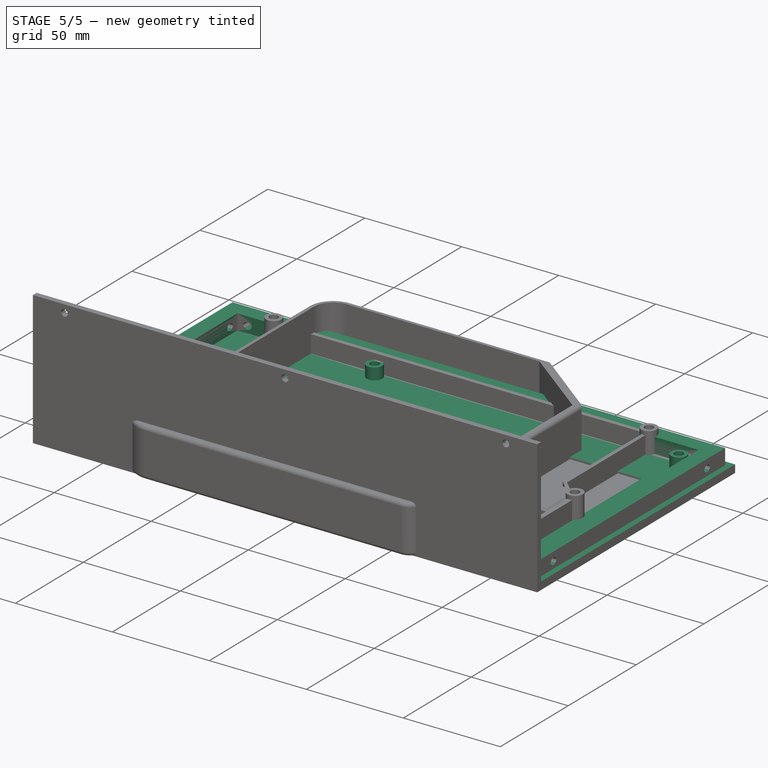
[diagram: stage 5 of 5 — iso view after this stage's code; geometry added in this stage tinted green]
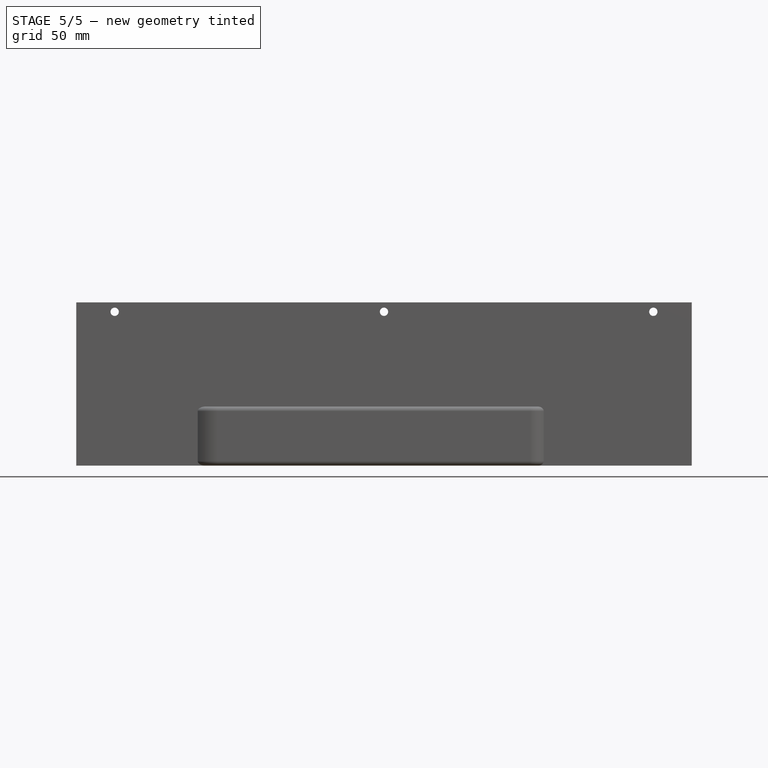
[diagram: stage 5 of 5 — front view after this stage's code; geometry added in this stage tinted green]
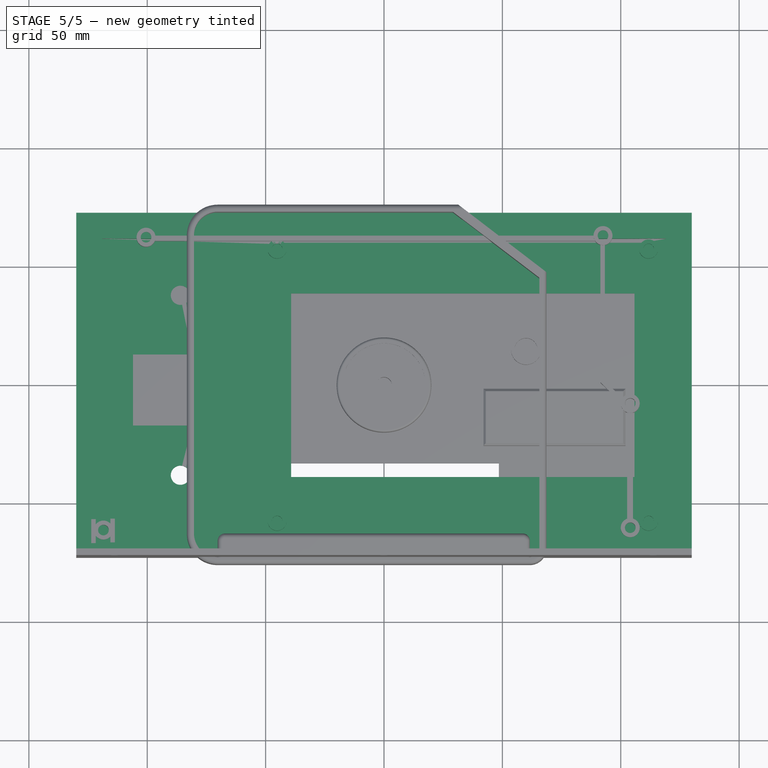
[diagram: stage 5 of 5 — top view after this stage's code; geometry added in this stage tinted green]
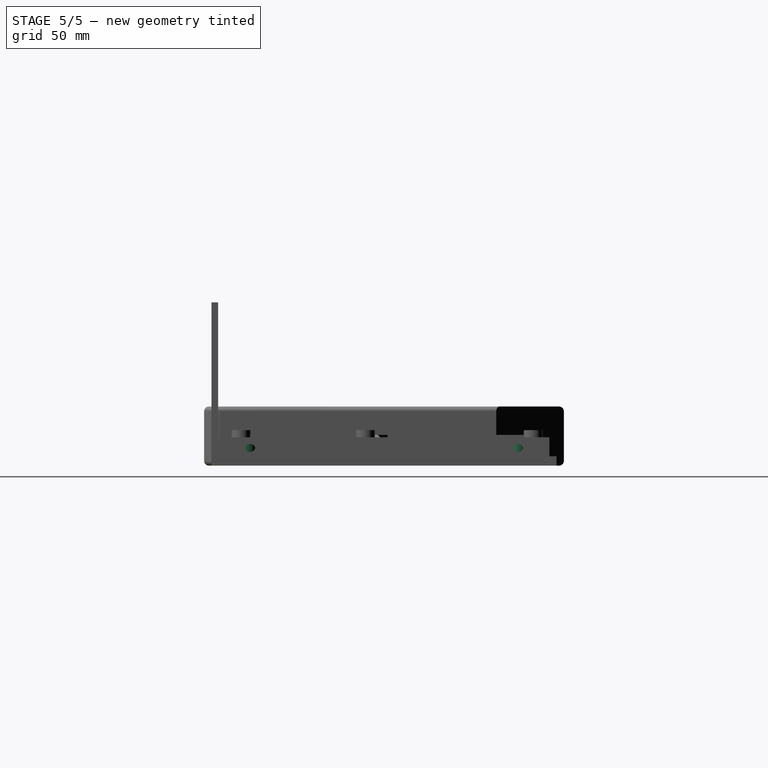
[diagram: stage 5 of 5 — right view after this stage's code; geometry added in this stage tinted green]
FEATURE [Spreadsheet::Sheet] Spreadsheet  label="p"
  cells = A2='lid_width; B2(lid_width)=254; A3='lid_length; B3(lid_length)=139.7; A4='lid_wall_thickness; B4(lid_wall_thickness)=3; A5='lid_face_thickness; B5(lid_face_thickness)==B4 * 1.33; C5='Calculated; A6='lid_support_thickness; B6(lid_support_thickness)=8; A7='lid_hole_diameter; B7(lid_hole_diameter)=4.5; C7='M3/H8; A8='lid_wall_clearance; B8(lid_wall_clearance)=0.2; A10='disp_width; B10(disp_width)=165; A11='disp_length; B11(disp_length)=125; A12='disp_height; B12(disp_height)=6; A13='disp_screen_width; B13(disp_screen_width)=145; A14='disp_screen_length; B14(disp_screen_length)=77.5; A15='disp_lug_hole_diameter; B15(disp_lug_hole_diameter)=4.5; C15='M3; A16='disp_lug_diameter; B16(disp_lug_diameter)=8; A17='disp_hole_width; B17(disp_hole_width)=156.9; A18='disp_hole_length; B18(disp_hole_length)=114.96; A20='encoder_stem_distance; B20(encoder_stem_distance)=76; A21='encoder_hole_diameter; B21(encoder_hole_diameter)=8.1; A22='encoder_nut_hole_diameter; B22(encoder_nut_hole_diameter)=13.5; A23='encoder_cable_width; B23(encoder_cable_width)=25; A24='encoder_cable_length; B24(encoder_cable_length)=30; A26='knob_diameter; B26(knob_diameter)=40; A27='knob_length; B27(knob_length)==B28 + 2; C27='Calculated; A28='knob_hole_depth; B28(knob_hole_depth)=14; A29='knob_hole_cut_depth; B29(knob_hole_cut_depth)=10; A30='knob_hole_diameter; B30(knob_hole_diameter)=6.6; A31='knob_insert_diameter; B31(knob_insert_diameter)=4.5; C31='M3/H4; A32='knob_insert_screw_head_diameter; B32(knob_insert_screw_head_diameter)=5.75; A33='knob_finger_diameter; B33(knob_finger_diameter)=13; A34='knob_hole_cut_width; B34(knob_hole_cut_width)=4.7; A36='body_lug_height; B36(body_lug_height)=12; A37='heat_sink_width; B37(heat_sink_width)=152.4; A38='heat_sink_length; B38(heat_sink_length)=81; A39='heat_sink_clearance; B39(heat_sink_clearance)=0.2; A40='heat_sink_edge; B40(heat_sink_edge)=23; A41='radio thickness; B41(radio_thickness)=23; A42='lid_thickness; B42(lid_thickness)=18; A44='m3_diameter; B44(m3_diameter)=3.5; A46='pi_width; B46(pi_width)=54; A47='pi_length; B47(pi_length)=17.8; A49='antenna_diameter; B49(antenna_diameter)=13.6; A51='power_width; B51(power_width)=16; A52='power_length; B52(power_length)=8; A53='power_edge; B53(power_edge)=59.25; A54='power_switch_diameter; B54(power_switch_diameter)=20.5; A56='jack_diameter; B56(jack_diameter)=6.3; A57='jack_edge; B57(jack_edge)=5.8; A59='5v_diameter; B59(v5_diameter)=8; A61='mic_diameter; B61(mic_diamter)=9.7; A62='mic_length; B62(mic_length)=6.7
FEATURE [Sketcher::SketchObject] Sketch  label="LidPadSketch"
  FullyConstrained = true
  MapMode = 5
  Support = -> [XY_Plane001]
  expr: Constraints[10] = <<p>>.lid_length + <<p>>.lid_wall_thickness * 2
  expr: Constraints[9] = <<p>>.lid_width + <<p>>.lid_wall_thickness * 2
  sketch-geometry (4):
    g0: LineSegment StartX=-130 StartY=72.85 StartZ=0 EndX=130 EndY=72.85 EndZ=0
    g1: LineSegment StartX=130 StartY=72.85 StartZ=0 EndX=130 EndY=-72.85 EndZ=0
    g2: LineSegment StartX=130 StartY=-72.85 StartZ=0 EndX=-130 EndY=-72.85 EndZ=0
    g3: LineSegment StartX=-130 StartY=-72.85 StartZ=0 EndX=-130 EndY=72.85 EndZ=0
  constraints (11):
    c: Coincident(g0,g1)
    c: Coincident(g1,g2)
    c: Coincident(g2,g3)
    c: Coincident(g3,g0)
    c: Horizontal(g0)
    c: Horizontal(g2)
    c: Vertical(g1)
    c: Vertical(g3)
    c: Symmetric(g0,g1,g-1)
    c: DistanceX(g0,g0) = 260
    c: DistanceY(g3,g3) = 145.7
FEATURE [PartDesign::Pad] Pad  label="LidPad"
  Direction = (0,0,1)
  Length = 3.99
  Length2 = 10
  Profile = -> Sketch
  ReferenceAxis = -> Sketch [N_Axis]
  Type = 0
  expr: Length = <<p>>.lid_face_thickness
FEATURE [PartDesign::Fillet] Fillet  label="LidFaceFillet"
  Base = -> Pad [Edge9,Edge3]
  BaseFeature = -> Pad
  Radius = 2.5
  SupportTransform = false
  UseAllEdges = false
FEATURE [Sketcher::SketchObject] Sketch001  label="LidInnerPadSketch"
  FullyConstrained = true
  MapMode = 5
  Placement = pos=(0,0,3.99) rot=(0,0,1;0rad)
  Support = -> [Fillet]
  expr: Constraints[10] = <<p>>.lid_width
  expr: Constraints[9] = <<p>>.lid_length
  sketch-geometry (4):
    g0: LineSegment StartX=-127 StartY=69.85 StartZ=0 EndX=127 EndY=69.85 EndZ=0
    g1: LineSegment StartX=127 StartY=69.85 StartZ=0 EndX=127 EndY=-69.85 EndZ=0
    g2: LineSegment StartX=127 StartY=-69.85 StartZ=0 EndX=-127 EndY=-69.85 EndZ=0
    g3: LineSegment StartX=-127 StartY=-69.85 StartZ=0 EndX=-127 EndY=69.85 EndZ=0
  constraints (11):
    c: Coincident(g0,g1)
    c: Coincident(g1,g2)
    c: Coincident(g2,g3)
    c: Coincident(g3,g0)
    c: Horizontal(g0)
    c: Horizontal(g2)
    c: Vertical(g1)
    c: Vertical(g3)
    c: Symmetric(g0,g1,g-1)
    c: DistanceY(g3,g3) = 139.7
    c: DistanceX(g0,g0) = 254
FEATURE [PartDesign::Pad] Pad001  label="LidInnerPad"
  BaseFeature = -> Fillet
  Direction = (0,0,1)
  Length = 8
  Length2 = 10
  Profile = -> Sketch001
  ReferenceAxis = -> Sketch001 [N_Axis]
  Type = 0
  expr: Length = <<p>>.lid_support_thickness
FEATURE [Sketcher::SketchObject] Sketch002  label="LidInnerPocketSketch"
  FullyConstrained = true
  MapMode = 5
  Placement = pos=(0,0,11.99) rot=(0,0,1;0rad)
  Support = -> [Pad001]
  expr: Constraints[10] = <<p>>.lid_length - <<p>>.lid_support_thickness * 2
  expr: Constraints[9] = <<p>>.lid_width - <<p>>.lid_support_thickness * 2
  sketch-geometry (4):
    g0: LineSegment StartX=-119 StartY=61.85 StartZ=0 EndX=119 EndY=61.85 EndZ=0
    g1: LineSegment StartX=119 StartY=61.85 StartZ=0 EndX=119 EndY=-61.85 EndZ=0
    g2: LineSegment StartX=119 StartY=-61.85 StartZ=0 EndX=-119 EndY=-61.85 EndZ=0
    g3: LineSegment StartX=-119 StartY=-61.85 StartZ=0 EndX=-119 EndY=61.85 EndZ=0
  constraints (11):
    c: Coincident(g0,g1)
    c: Coincident(g1,g2)
    c: Coincident(g2,g3)
    c: Coincident(g3,g0)
    c: Horizontal(g0)
    c: Horizontal(g2)
    c: Vertical(g1)
    c: Vertical(g3)
    c: Symmetric(g0,g1,g-1)
    c: DistanceX(g0,g0) = 238
    c: DistanceY(g3,g3) = 123.7
FEATURE [PartDesign::Pocket] Pocket  label="LidInnerPocket"
  BaseFeature = -> Pad001
  Direction = (0,0,-1)
  Length = 8
  Length2 = 5
  Profile = -> Sketch002
  ReferenceAxis = -> Sketch002 [N_Axis]
  Type = 0
  expr: Length = <<p>>.lid_support_thickness
FEATURE [Sketcher::SketchObject] Sketch003  label="ScreenPocketSketch"
  FullyConstrained = true
  MapMode = 5
  Placement = pos=(0,0,3.99) rot=(0,0,1;0rad)
  Support = -> [Pocket]
  expr: Constraints[10] = <<p>>.disp_screen_length / 2
  expr: Constraints[11] = <<p>>.lid_width / 2 - <<p>>.lid_wall_thickness - <<p>>.lid_support_thickness - <<p>>.lid_wall_clearance - (<<p>>.disp_width - <<p>>.disp_screen_width) / 2
  expr: Constraints[8] = <<p>>.disp_screen_width
  expr: Constraints[9] = <<p>>.disp_screen_length
  sketch-geometry (4):
    g0: LineSegment StartX=-39.2 StartY=38.75 StartZ=0 EndX=105.8 EndY=38.75 EndZ=0
    g1: LineSegment StartX=105.8 StartY=38.75 StartZ=0 EndX=105.8 EndY=-38.75 EndZ=0
    g2: LineSegment StartX=105.8 StartY=-38.75 StartZ=0 EndX=-39.2 EndY=-38.75 EndZ=0
    g3: LineSegment StartX=-39.2 StartY=-38.75 StartZ=0 EndX=-39.2 EndY=38.75 EndZ=0
  constraints (12):
    c: Coincident(g0,g1)
    c: Coincident(g1,g2)
    c: Coincident(g2,g3)
    c: Coincident(g3,g0)
    c: Horizontal(g0)
    c: Horizontal(g2)
    c: Vertical(g1)
    c: Vertical(g3)
    c: DistanceX(g0,g0) = 145
    c: DistanceY(g1,g1) = 77.5
    c: DistanceY(g-1,g0) = 38.75
    c: DistanceX(g-1,g0) = 105.8
FEATURE [PartDesign::Pocket] Pocket001  label="ScreenPocket"
  BaseFeature = -> Pocket
  Direction = (0,0,-1)
  Length = 3.99
  Length2 = 5
  Profile = -> Sketch003
  ReferenceAxis = -> Sketch003 [N_Axis]
  Type = 0
  expr: Length = <<p>>.lid_face_thickness
FEATURE [PartDesign::Chamfer] Chamfer  label="ScreenChamfer"
  Angle = 45
  Base = -> Pocket001 [Edge26,Edge25,Edge24,Edge23]
  BaseFeature = -> Pocket001
  ChamferType = 0
  FlipDirection = false
  Size = 2
  Size2 = 1
  SupportTransform = false
  UseAllEdges = false
FEATURE [Sketcher::SketchObject] Sketch004  label="ScreenLugSketch"
  FullyConstrained = true
  MapMode = 5
  Placement = pos=(0,0,3.99) rot=(0,0,1;0rad)
  Support = -> [Chamfer]
  expr: Constraints[10] = <<p>>.disp_lug_diameter
  expr: Constraints[11] = <<p>>.disp_lug_diameter
  expr: Constraints[12] = <<p>>.disp_hole_length / 2
  expr: Constraints[13] = <<p>>.disp_hole_length / 2
  expr: Constraints[14] = <<p>>.disp_hole_length / 2
  expr: Constraints[15] = <<p>>.disp_hole_length / 2
  expr: Constraints[16] = <<p>>.disp_hole_width
  expr: Constraints[17] = <<p>>.disp_hole_width
  expr: Constraints[18] = <<p>>.lid_width / 2 - <<p>>.lid_wall_thickness - <<p>>.lid_support_thickness - <<p>>.lid_wall_clearance - (<<p>>.disp_width - <<p>>.disp_hole_width) / 2
  expr: Constraints[19] = <<p>>.lid_width / 2 - <<p>>.lid_wall_thickness - <<p>>.lid_support_thickness - <<p>>.lid_wall_clearance - (<<p>>.disp_width - <<p>>.disp_hole_width) / 2
  expr: Constraints[4] = <<p>>.disp_lug_hole_diameter
  expr: Constraints[5] = <<p>>.disp_lug_hole_diameter
  expr: Constraints[6] = <<p>>.disp_lug_hole_diameter
  expr: Constraints[7] = <<p>>.disp_lug_hole_diameter
  expr: Constraints[8] = <<p>>.disp_lug_diameter
  expr: Constraints[9] = <<p>>.disp_lug_diameter
  sketch-geometry (8):
    g0: Circle CenterX=111.75 CenterY=-57.48 CenterZ=0 NormalX=0 NormalY=0 NormalZ=1 AngleXU=0 Radius=4
    g1: Circle CenterX=111.75 CenterY=-57.48 CenterZ=0 NormalX=0 NormalY=0 NormalZ=1 AngleXU=0 Radius=2.25
    g2: Circle CenterX=111.75 CenterY=57.48 CenterZ=0 NormalX=0 NormalY=0 NormalZ=1 AngleXU=0 Radius=4
    g3: Circle CenterX=111.75 CenterY=57.48 CenterZ=0 NormalX=0 NormalY=0 NormalZ=1 AngleXU=0 Radius=2.25
    g4: Circle CenterX=-45.15 CenterY=57.48 CenterZ=0 NormalX=0 NormalY=0 NormalZ=1 AngleXU=0 Radius=4
    g5: Circle CenterX=-45.15 CenterY=57.48 CenterZ=0 NormalX=0 NormalY=0 NormalZ=1 AngleXU=0 Radius=2.25
    g6: Circle CenterX=-45.15 CenterY=-57.48 CenterZ=0 NormalX=0 NormalY=0 NormalZ=1 AngleXU=0 Radius=4
    g7: Circle CenterX=-45.15 CenterY=-57.48 CenterZ=0 NormalX=0 NormalY=0 NormalZ=1 AngleXU=0 Radius=2.25
  constraints (20):
    c: Coincident(g1,g0)
    c: Coincident(g3,g2)
    c: Coincident(g5,g4)
    c: Coincident(g7,g6)
    c: Diameter(g3) = 4.5
    c: Diameter(g1) = 4.5
    c: Diameter(g7) = 4.5
    c: Diameter(g5) = 4.5
    c: Diameter(g2) = 8
    c: Diameter(g0) = 8
    c: Diameter(g6) = 8
    c: Diameter(g4) = 8
    c: DistanceY(g-1,g4) = 57.48
    c: DistanceY(g6,g-1) = 57.48
    c: DistanceY(g-1,g2) = 57.48
    c: DistanceY(g0,g-1) = 57.48
    c: DistanceX(g4,g2) = 156.9
    c: DistanceX(g6,g0) = 156.9
    c: DistanceX(g-1,g2) = 111.75
    c: DistanceX(g-1,g0) = 111.75
FEATURE [PartDesign::Pad] Pad002  label="ScreenLugs"
  BaseFeature = -> Chamfer
  Direction = (0,0,1)
  Length = 6
  Length2 = 10
  Profile = -> Sketch004
  ReferenceAxis = -> Sketch004 [N_Axis]
  Type = 0
  expr: Length = <<p>>.disp_height
FEATURE [Sketcher::SketchObject] Sketch005  label="EncoderPocketSketch"
  FullyConstrained = true
  MapMode = 5
  Placement = pos=(0,0,3.99) rot=(0,0,1;0rad)
  Support = -> [Pad002]
  expr: Constraints[0] = <<p>>.encoder_hole_diameter
  expr: Constraints[1] = <<p>>.encoder_hole_diameter
  expr: Constraints[2] = <<p>>.encoder_stem_distance
  expr: Constraints[3] = <<p>>.encoder_stem_distance / 2
  expr: Constraints[4] = <<p>>.lid_width / 2 - <<p>>.lid_wall_thickness - <<p>>.lid_support_thickness - 30
  expr: Constraints[5] = <<p>>.lid_width / 2 - <<p>>.lid_wall_thickness - <<p>>.lid_support_thickness - 30
  sketch-geometry (2):
    g0: Circle CenterX=-86 CenterY=38 CenterZ=0 NormalX=0 NormalY=0 NormalZ=1 AngleXU=0 Radius=4.05
    g1: Circle CenterX=-86 CenterY=-38 CenterZ=0 NormalX=0 NormalY=0 NormalZ=1 AngleXU=0 Radius=4.05
  constraints (6):
    c: Diameter(g1) = 8.1
    c: Diameter(g0) = 8.1
    c: DistanceY(g1,g0) = 76
    c: DistanceY(g-1,g0) = 38
    c: DistanceX(g0,g-1) = 86
    c: DistanceX(g1,g-1) = 86
FEATURE [PartDesign::Pocket] Pocket002  label="EncoderPocket"
  BaseFeature = -> Pad002
  Direction = (0,0,-1)
  Length = 3.99
  Length2 = 5
  Profile = -> Sketch005
  ReferenceAxis = -> Sketch005 [N_Axis]
  Type = 0
  expr: Length = <<p>>.lid_face_thickness
FEATURE [Sketcher::SketchObject] Sketch006  label="EncoderCableSketch"
  FullyConstrained = true
  MapMode = 5
  Placement = pos=(0,0,3.99) rot=(0,0,1;0rad)
  Support = -> [Pocket002]
  expr: Constraints[10] = <<p>>.lid_width / 2 - <<p>>.lid_wall_thickness - <<p>>.lid_support_thickness - 10
  expr: Constraints[11] = <<p>>.encoder_stem_distance / 2 - 21
  expr: Constraints[8] = <<p>>.encoder_cable_width
  expr: Constraints[9] = <<p>>.encoder_cable_length
  sketch-geometry (4):
    g0: LineSegment StartX=-106 StartY=13 StartZ=0 EndX=-81 EndY=13 EndZ=0
    g1: LineSegment StartX=-81 StartY=13 StartZ=0 EndX=-81 EndY=-17 EndZ=0
    g2: LineSegment StartX=-81 StartY=-17 StartZ=0 EndX=-106 EndY=-17 EndZ=0
    g3: LineSegment StartX=-106 StartY=-17 StartZ=0 EndX=-106 EndY=13 EndZ=0
  constraints (12):
    c: Coincident(g0,g1)
    c: Coincident(g1,g2)
    c: Coincident(g2,g3)
    c: Coincident(g3,g0)
    c: Horizontal(g0)
    c: Horizontal(g2)
    c: Vertical(g1)
    c: Vertical(g3)
    c: DistanceX(g0,g0) = 25
    c: DistanceY(g1,g1) = 30
    c: DistanceX(g0,g-1) = 106
    c: DistanceY(g1,g-1) = 17
FEATURE [PartDesign::Pocket] Pocket003  label="EncoderCablePocket"
  BaseFeature = -> Pocket002
  Direction = (0,0,-1)
  Length = 2.49
  Length2 = 5
  Profile = -> Sketch006
  ReferenceAxis = -> Sketch006 [N_Axis]
  Type = 0
  expr: Length = <<p>>.lid_face_thickness - 1.5
FEATURE [Sketcher::SketchObject] Sketch007  label="EncoderNutSketch"
  FullyConstrained = true
  MapMode = 5
  Placement = pos=(0,0,0) rot=(1,0,0;3.14159rad)
  Support = -> [Pocket003]
  expr: Constraints[0] = <<p>>.encoder_nut_hole_diameter
  expr: Constraints[1] = <<p>>.encoder_nut_hole_diameter
  expr: Constraints[2] = <<p>>.encoder_stem_distance / 2
  expr: Constraints[3] = <<p>>.encoder_stem_distance / 2
  expr: Constraints[4] = <<p>>.lid_width / 2 - <<p>>.lid_wall_thickness - <<p>>.lid_support_thickness - 30
  expr: Constraints[5] = <<p>>.lid_width / 2 - <<p>>.lid_wall_thickness - <<p>>.lid_support_thickness - 30
  sketch-geometry (2):
    g0: Circle CenterX=-86 CenterY=38 CenterZ=0 NormalX=0 NormalY=0 NormalZ=1 AngleXU=0 Radius=6.75
    g1: Circle CenterX=-86 CenterY=-38 CenterZ=0 NormalX=0 NormalY=0 NormalZ=1 AngleXU=0 Radius=6.75
  constraints (6):
    c: Diameter(g0) = 13.5
    c: Diameter(g1) = 13.5
    c: DistanceY(g1,g-1) = 38
    c: DistanceY(g-1,g0) = 38
    c: DistanceX(g0,g-1) = 86
    c: DistanceX(g1,g-1) = 86
FEATURE [PartDesign::Pocket] Pocket004  label="EndoderNutPocket"
  BaseFeature = -> Pocket003
  Direction = (0,0,1)
  Length = 1
  Length2 = 5
  Profile = -> Sketch007
  ReferenceAxis = -> Sketch007 [N_Axis]
  Type = 0
FEATURE [Part::Part2DObjectPython] ShapeString  label="K7TLEString"  # Draft 2D object (typed FeaturePython)
  FontFile = <path>
  MakeFace = true
  Placement = pos=(53.8,50.99,0) rot=(0,1,0;3.14159rad)
  Size = 10
  String = K7TLE
  Tracking = 0
FEATURE [PartDesign::Pocket] Pocket005  label="K7TLEPocket"
  BaseFeature = -> Pocket004
  Direction = (0,0,1)
  Length = 1
  Length2 = 5
  Profile = -> ShapeString
  ReferenceAxis = -> ShapeString [N_Axis]
  Type = 0
FEATURE [Sketcher::SketchObject] Sketch008  label="LongWallSketch1"
  FullyConstrained = true
  MapMode = 5
  Placement = pos=(0,69.85,0) rot=(0,0.707107,0.707107;3.14159rad)
  Support = -> [Pocket005]
  expr: Constraints[0] = <<p>>.lid_hole_diameter
  expr: Constraints[1] = <<p>>.lid_hole_diameter
  expr: Constraints[2] = <<p>>.lid_hole_diameter
  expr: Constraints[4] = <<p>>.lid_face_thickness + <<p>>.lid_support_thickness / 2
  expr: Constraints[5] = <<p>>.lid_face_thickness + <<p>>.lid_support_thickness / 2
  expr: Constraints[6] = <<p>>.lid_face_thickness + <<p>>.lid_support_thickness / 2
  expr: Constraints[7] = <<p>>.lid_width / 2 - <<p>>.lid_wall_thickness - <<p>>.lid_support_thickness - <<p>>.lid_hole_diameter / 2
  expr: Constraints[8] = <<p>>.lid_width / 2 - <<p>>.lid_wall_thickness - <<p>>.lid_support_thickness - <<p>>.lid_hole_diameter / 2
  sketch-geometry (3):
    g0: Circle CenterX=-113.75 CenterY=7.99 CenterZ=0 NormalX=0 NormalY=0 NormalZ=1 AngleXU=0 Radius=2.25
    g1: Circle CenterX=0 CenterY=7.99 CenterZ=0 NormalX=0 NormalY=0 NormalZ=1 AngleXU=0 Radius=2.25
    g2: Circle CenterX=113.75 CenterY=7.99 CenterZ=0 NormalX=0 NormalY=0 NormalZ=1 AngleXU=0 Radius=2.25
  constraints (9):
    c: Diameter(g0) = 4.5
    c: Diameter(g1) = 4.5
    c: Diameter(g2) = 4.5
    c: DistanceX(g1,g-1) = 0
    c: DistanceY(g-1,g1) = 7.99
    c: DistanceY(g-1,g0) = 7.99
    c: DistanceY(g-1,g2) = 7.99
    c: DistanceX(g-1,g2) = 113.75
    c: DistanceX(g0,g-1) = 113.75
FEATURE [PartDesign::Pocket] Pocket006  label="LongWallPocket1"
  BaseFeature = -> Pocket005
  Direction = (0,-1,2e-16)
  Length = 8
  Length2 = 5
  Profile = -> Sketch008
  ReferenceAxis = -> Sketch008 [N_Axis]
  Type = 0
  expr: Length = <<p>>.lid_support_thickness
FEATURE [Sketcher::SketchObject] Sketch009  label="LongWallSketch2"
  FullyConstrained = true
  MapMode = 5
  Placement = pos=(0,-69.85,0) rot=(1,0,0;1.5708rad)
  Support = -> [Pocket006]
  expr: Constraints[1] = <<p>>.lid_hole_diameter
  expr: Constraints[2] = <<p>>.lid_hole_diameter
  expr: Constraints[3] = <<p>>.lid_hole_diameter
  expr: Constraints[4] = <<p>>.lid_face_thickness + <<p>>.lid_support_thickness / 2
  expr: Constraints[5] = <<p>>.lid_face_thickness + <<p>>.lid_support_thickness / 2
  expr: Constraints[6] = <<p>>.lid_face_thickness + <<p>>.lid_support_thickness / 2
  expr: Constraints[7] = <<p>>.lid_width / 2 - <<p>>.lid_wall_thickness - <<p>>.lid_support_thickness - <<p>>.lid_hole_diameter / 2
  expr: Constraints[8] = <<p>>.lid_width / 2 - <<p>>.lid_wall_thickness - <<p>>.lid_support_thickness - <<p>>.lid_hole_diameter / 2
  sketch-geometry (3):
    g0: Circle CenterX=0 CenterY=7.99 CenterZ=0 NormalX=0 NormalY=0 NormalZ=1 AngleXU=0 Radius=2.25
    g1: Circle CenterX=-113.75 CenterY=7.99 CenterZ=0 NormalX=0 NormalY=0 NormalZ=1 AngleXU=0 Radius=2.25
    g2: Circle CenterX=113.75 CenterY=7.99 CenterZ=0 NormalX=0 NormalY=0 NormalZ=1 AngleXU=0 Radius=2.25
  constraints (9):
    c: PointOnObject(g0,g-2)
    c: Diameter(g1) = 4.5
    c: Diameter(g0) = 4.5
    c: Diameter(g2) = 4.5
    c: DistanceY(g-1,g1) = 7.99
    c: DistanceY(g-1,g0) = 7.99
    c: DistanceY(g-1,g2) = 7.99
    c: DistanceX(g1,g-1) = 113.75
    c: DistanceX(g-1,g2) = 113.75
FEATURE [PartDesign::Pocket] Pocket007  label="LongWallPocket2"
  BaseFeature = -> Pocket006
  Direction = (0,1,-2e-16)
  Length = 8
  Length2 = 5
  Profile = -> Sketch009
  ReferenceAxis = -> Sketch009 [N_Axis]
  Type = 0
  expr: Length = <<p>>.lid_support_thickness
FEATURE [Sketcher::SketchObject] Sketch010  label="ShortWallSketch1"
  FullyConstrained = true
  MapMode = 5
  Placement = pos=(-127,0,0) rot=(0.57735,-0.57735,-0.57735;2.0944rad)
  Support = -> [Pocket007]
  expr: Constraints[0] = <<p>>.lid_hole_diameter
  expr: Constraints[1] = <<p>>.lid_hole_diameter
  expr: Constraints[2] = <<p>>.lid_length / 2 - <<p>>.lid_wall_thickness - <<p>>.lid_support_thickness - <<p>>.lid_hole_diameter / 2
  expr: Constraints[3] = <<p>>.lid_length / 2 - <<p>>.lid_wall_thickness - <<p>>.lid_support_thickness - <<p>>.lid_hole_diameter / 2
  expr: Constraints[4] = <<p>>.lid_face_thickness + <<p>>.lid_support_thickness / 2
  expr: Constraints[5] = <<p>>.lid_face_thickness + <<p>>.lid_support_thickness / 2
  sketch-geometry (2):
    g0: Circle CenterX=-56.6 CenterY=7.99 CenterZ=0 NormalX=0 NormalY=0 NormalZ=1 AngleXU=0 Radius=2.25
    g1: Circle CenterX=56.6 CenterY=7.99 CenterZ=0 NormalX=0 NormalY=0 NormalZ=1 AngleXU=0 Radius=2.25
  constraints (6):
    c: Diameter(g0) = 4.5
    c: Diameter(g1) = 4.5
    c: DistanceX(g0,g-1) = 56.6
    c: DistanceX(g-1,g1) = 56.6
    c: DistanceY(g-1,g0) = 7.99
    c: DistanceY(g-1,g1) = 7.99
FEATURE [PartDesign::Pocket] Pocket008  label="ShortWallPocket1"
  BaseFeature = -> Pocket007
  Direction = (1,0,0)
  Length = 8
  Length2 = 5
  Profile = -> Sketch010
  ReferenceAxis = -> Sketch010 [N_Axis]
  Type = 0
  expr: Length = <<p>>.lid_support_thickness
FEATURE [Sketcher::SketchObject] Sketch011  label="ShortWallSketch2"
  FullyConstrained = true
  MapMode = 5
  Placement = pos=(127,0,0) rot=(0.57735,0.57735,0.57735;2.0944rad)
  Support = -> [Pocket008]
  expr: Constraints[0] = <<p>>.lid_hole_diameter
  expr: Constraints[1] = <<p>>.lid_hole_diameter
  expr: Constraints[2] = <<p>>.lid_face_thickness + <<p>>.lid_support_thickness / 2
  expr: Constraints[3] = <<p>>.lid_face_thickness + <<p>>.lid_support_thickness / 2
  expr: Constraints[4] = <<p>>.lid_length / 2 - <<p>>.lid_wall_thickness - <<p>>.lid_support_thickness - <<p>>.lid_hole_diameter / 2
  expr: Constraints[5] = <<p>>.lid_length / 2 - <<p>>.lid_wall_thickness - <<p>>.lid_support_thickness - <<p>>.lid_hole_diameter / 2
  sketch-geometry (2):
    g0: Circle CenterX=-56.6 CenterY=7.99 CenterZ=0 NormalX=0 NormalY=0 NormalZ=1 AngleXU=0 Radius=2.25
    g1: Circle CenterX=56.6 CenterY=7.99 CenterZ=0 NormalX=0 NormalY=0 NormalZ=1 AngleXU=0 Radius=2.25
  constraints (6):
    c: Diameter(g0) = 4.5
    c: Diameter(g1) = 4.5
    c: DistanceY(g-1,g0) = 7.99
    c: DistanceY(g-1,g1) = 7.99
    c: DistanceX(g0,g-1) = 56.6
    c: DistanceX(g-1,g1) = 56.6
FEATURE [PartDesign::Pocket] Pocket009  label="ShortWallPocket2"
  BaseFeature = -> Pocket008
  Direction = (-1,0,0)
  Length = 8
  Length2 = 5
  Profile = -> Sketch011
  ReferenceAxis = -> Sketch011 [N_Axis]
  Type = 0
  expr: Length = <<p>>.lid_support_thickness
FEATURE [Sketcher::SketchObject] Sketch020  label="TobBlockRemovalSketch"
  FullyConstrained = true
  MapMode = 5
  Placement = pos=(0,0,26) rot=(0,0,1;0rad)
  Support = -> [Pocket014]
  expr: Constraints[10] = <<p>>.knob_diameter
  expr: Constraints[9] = <<p>>.knob_diameter
  sketch-geometry (4):
    g0: LineSegment StartX=-20 StartY=20 StartZ=0 EndX=20 EndY=20 EndZ=0
    g1: LineSegment StartX=20 StartY=20 StartZ=0 EndX=20 EndY=-20 EndZ=0
    g2: LineSegment StartX=20 StartY=-20 StartZ=0 EndX=-20 EndY=-20 EndZ=0
    g3: LineSegment StartX=-20 StartY=-20 StartZ=0 EndX=-20 EndY=20 EndZ=0
  constraints (11):
    c: Coincident(g0,g1)
    c: Coincident(g1,g2)
    c: Coincident(g2,g3)
    c: Coincident(g3,g0)
    c: Horizontal(g0)
    c: Horizontal(g2)
    c: Vertical(g1)
    c: Vertical(g3)
    c: Symmetric(g0,g1,g-1)
    c: DistanceX(g0,g0) = 40
    c: DistanceY(g1,g1) = 40
FEATURE [PartDesign::Pocket] Pocket015  label="TopBlockRemovalPocket"
  BaseFeature = -> Pocket014
  Direction = (0,0,-1)
  Length = 10
  Length2 = 5
  Profile = -> Sketch020
  ReferenceAxis = -> Sketch020 [N_Axis]
  Type = 0
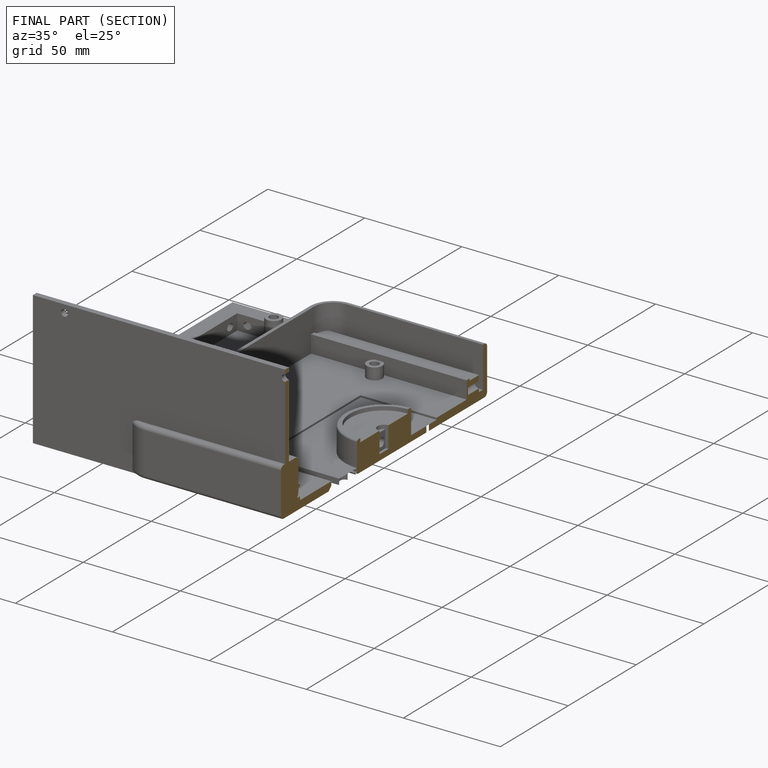
[diagram: finished part — half-section view (interior)]
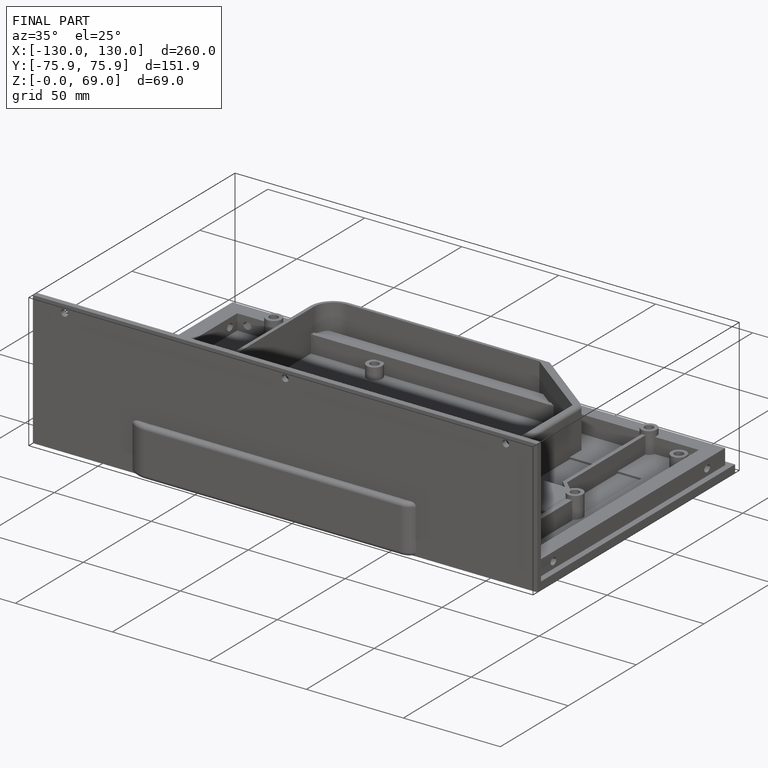
[diagram: finished part — iso view with bounding-box wireframe]
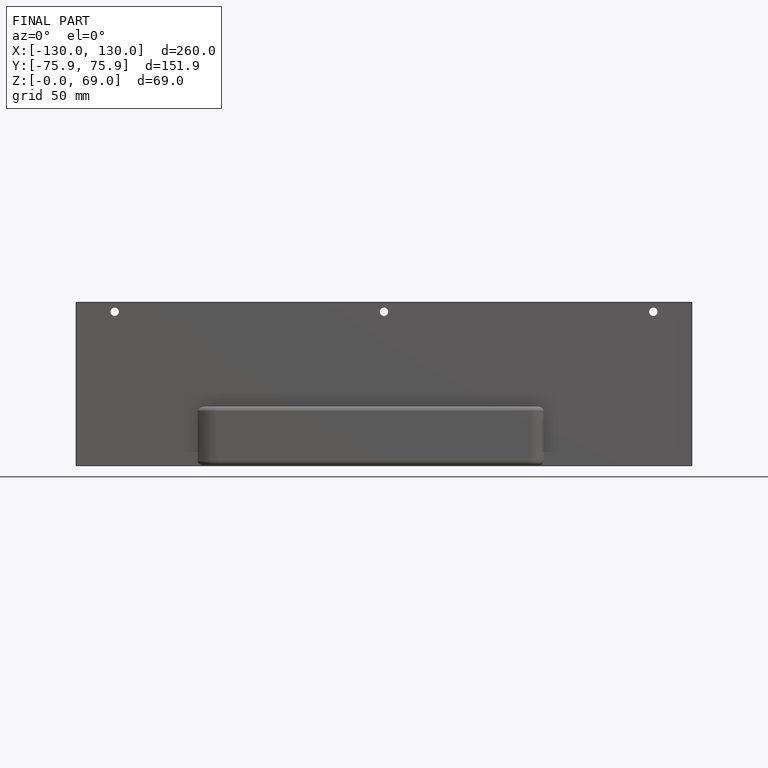
[diagram: finished part — front view with bounding-box wireframe]
